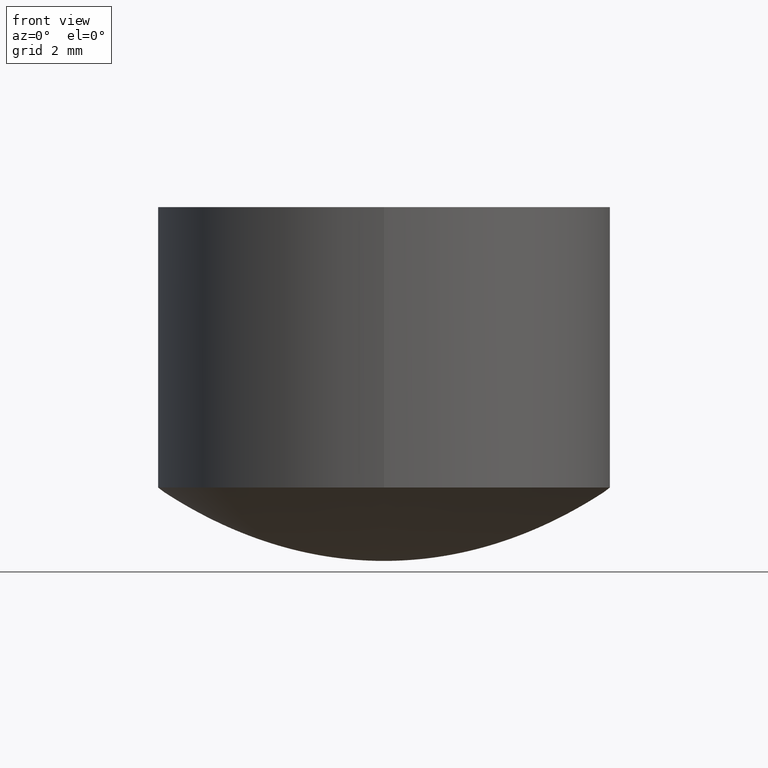
[diagram: clean part render]
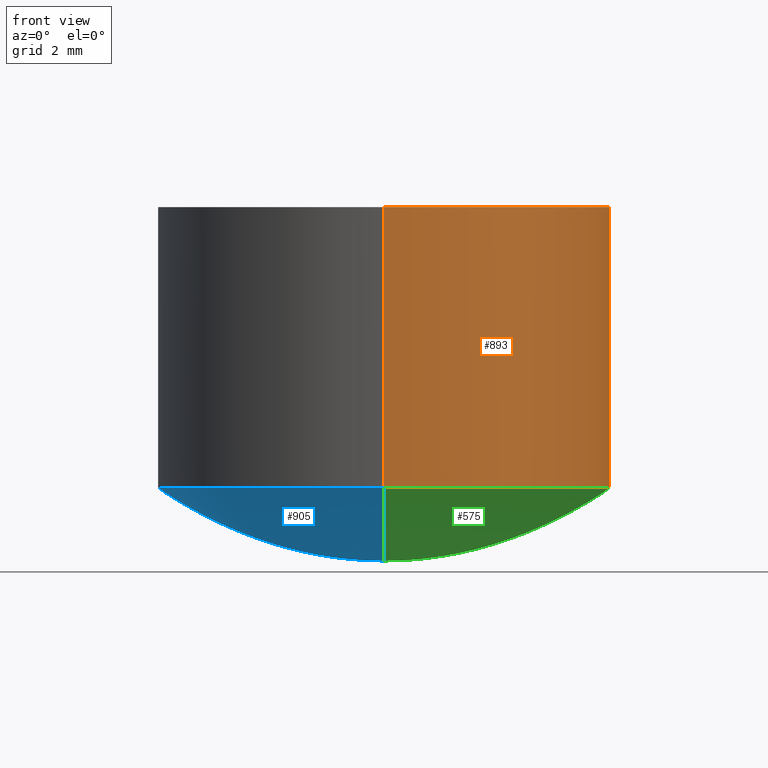
[diagram: same view with three faces highlighted in distinct colors, each labeled with its STEP entity id]
A machine part, front view with three faces highlighted in distinct colors.
Their STEP definitions:

[orange] entity #893 — the highlighted cylindrical surface (partial cylindrical patch) has radius 5 mm, axis along (0, 0, -1).
#25 = DIRECTION ( 'NONE',  ( 0.000000000000000000, 0.000000000000000000, -1.000000000000000000 ) ) ;
#69 = CIRCLE ( 'NONE', #97, 5.000000000000000000 ) ;
#71 = ORIENTED_EDGE ( 'NONE', *, *, #705, .T. ) ;
#95 = LINE ( 'NONE', #511, #692 ) ;
#97 = AXIS2_PLACEMENT_3D ( 'NONE', #469, #393, #723 ) ;
#103 = CARTESIAN_POINT ( 'NONE',  ( 0.000000000000000000, 0.000000000000000000, 8.189999999999999503 ) ) ;
#110 = ORIENTED_EDGE ( 'NONE', *, *, #995, .T. ) ;
#138 = EDGE_CURVE ( 'NONE', #477, #572, #95, .T. ) ;
#156 = EDGE_LOOP ( 'NONE', ( #110, #771, #71, #1076 ) ) ;
#164 = VECTOR ( 'NONE', #409, 1000.000000000000000 ) ;
#183 = EDGE_CURVE ( 'NONE', #395, #308, #415, .T. ) ;
#253 = DIRECTION ( 'NONE',  ( 0.000000000000000000, 0.000000000000000000, -1.000000000000000000 ) ) ;
#308 = VERTEX_POINT ( 'NONE', #740 ) ;
#361 = AXIS2_PLACEMENT_3D ( 'NONE', #629, #871, #789 ) ;
#393 = DIRECTION ( 'NONE',  ( 0.000000000000000000, 0.000000000000000000, -1.000000000000000000 ) ) ;
#395 = VERTEX_POINT ( 'NONE', #703 ) ;
#409 = DIRECTION ( 'NONE',  ( 0.000000000000000000, 0.000000000000000000, -1.000000000000000000 ) ) ;
#415 = LINE ( 'NONE', #1001, #164 ) ;
#437 = CYLINDRICAL_SURFACE ( 'NONE', #625, 5.000000000000000000 ) ;
#469 = CARTESIAN_POINT ( 'NONE',  ( 0.000000000000000000, 0.000000000000000000, 7.799999999999999822 ) ) ;
#477 = VERTEX_POINT ( 'NONE', #787 ) ;
#511 = CARTESIAN_POINT ( 'NONE',  ( 0.000000000000000000, 5.000000000000000000, 8.189999999999999503 ) ) ;
#572 = VERTEX_POINT ( 'NONE', #862 ) ;
#625 = AXIS2_PLACEMENT_3D ( 'NONE', #103, #25, #665 ) ;
#629 = CARTESIAN_POINT ( 'NONE',  ( 0.000000000000000000, 0.000000000000000000, 1.617560169019170102 ) ) ;
#665 = DIRECTION ( 'NONE',  ( 0.000000000000000000, 1.000000000000000000, 0.000000000000000000 ) ) ;
#692 = VECTOR ( 'NONE', #253, 1000.000000000000000 ) ;
#703 = CARTESIAN_POINT ( 'NONE',  ( 6.123233995736766282E-16, -5.000000000000000000, 7.799999999999999822 ) ) ;
#705 = EDGE_CURVE ( 'NONE', #308, #572, #897, .T. ) ;
#723 = DIRECTION ( 'NONE',  ( 0.000000000000000000, 1.000000000000000000, 0.000000000000000000 ) ) ;
#740 = CARTESIAN_POINT ( 'NONE',  ( 6.123233995736766282E-16, -5.000000000000000000, 1.617560169019170102 ) ) ;
#754 = FACE_OUTER_BOUND ( 'NONE', #156, .T. ) ;
#771 = ORIENTED_EDGE ( 'NONE', *, *, #183, .T. ) ;
#787 = CARTESIAN_POINT ( 'NONE',  ( 0.000000000000000000, 5.000000000000000000, 7.799999999999999822 ) ) ;
#789 = DIRECTION ( 'NONE',  ( 0.000000000000000000, 1.000000000000000000, 0.000000000000000000 ) ) ;
#862 = CARTESIAN_POINT ( 'NONE',  ( 0.000000000000000000, 5.000000000000000000, 1.617560169019170102 ) ) ;
#871 = DIRECTION ( 'NONE',  ( 0.000000000000000000, 0.000000000000000000, 1.000000000000000000 ) ) ;
#893 = ADVANCED_FACE ( 'NONE', ( #754 ), #437, .T. ) ;
#897 = CIRCLE ( 'NONE', #361, 5.000000000000000000 ) ;
#995 = EDGE_CURVE ( 'NONE', #477, #395, #69, .T. ) ;
#1001 = CARTESIAN_POINT ( 'NONE',  ( 6.123233995736766282E-16, -5.000000000000000000, 8.189999999999999503 ) ) ;
#1076 = ORIENTED_EDGE ( 'NONE', *, *, #138, .F. ) ;

[blue] entity #905 — the highlighted face is a freeform B-spline surface patch.
#1 = CARTESIAN_POINT ( 'NONE',  ( 0.000000000000000000, 5.000000000000000000, 1.617560169019170102 ) ) ;
#2 = CARTESIAN_POINT ( 'NONE',  ( 0.000000000000000000, 0.000000000000000000, 0.000000000000000000 ) ) ;
#3 = CARTESIAN_POINT ( 'NONE',  ( -5.230262371358484230E-16, -4.270833333333330373, 1.167217595468119873 ) ) ;
#4 = CARTESIAN_POINT ( 'NONE',  ( -4.895833333333338366, 2.447916666666669627, 0.3756607499278489803 ) ) ;
#6 = CARTESIAN_POINT ( 'NONE',  ( -2.551347498223648427E-16, -2.083333333333330373, 0.2712992865518660257 ) ) ;
#7 = CARTESIAN_POINT ( 'NONE',  ( 0.000000000000000000, 0.000000000000000000, 0.000000000000000000 ) ) ;
#8 = CARTESIAN_POINT ( 'NONE',  ( 0.000000000000000000, 4.427083333333329485, 1.256971558564329960 ) ) ;
#9 = CARTESIAN_POINT ( 'NONE',  ( -2.232429060945700200E-16, -1.822916666666670071, 0.2073209675515889916 ) ) ;
#11 = CARTESIAN_POINT ( 'NONE',  ( 0.000000000000000000, 3.697916666666669627, 0.8684960787638259516 ) ) ;
#13 = CARTESIAN_POINT ( 'NONE',  ( 0.000000000000000000, 5.000000000000000000, 1.617560169019170102 ) ) ;
#14 = B_SPLINE_CURVE_WITH_KNOTS ( 'NONE', 3,
 ( #319, #808, #730, #578, #987, #651, #237, #142, #222, #641, #896, #887, #973, #150, #486, #655, #901, #813, #489, #817, #61, #78, #714, #1057, #303, #635, #563, #966, #556, #881, #136, #472, #389, #719, #1063, #228, #674, #752, #6, #86, #18, #505, #585, #160, #759, #831, #426, #335, #904, #244, #349, #821, #1020, #91, #330, #494, #659, #838, #501, #420, #431, #82, #929, #680, #668, #747 ),
 .UNSPECIFIED., .F., .F.,
 ( 4, 2, 2, 2, 2, 2, 2, 2, 2, 2, 2, 2, 2, 2, 2, 2, 2, 2, 2, 2, 2, 2, 2, 2, 2, 2, 2, 2, 2, 2, 2, 2, 4 ),
 ( -1.000000000000000000, -0.9687500000000000000, -0.9375000000000000000, -0.9062500000000000000, -0.8750000000000000000, -0.8437500000000000000, -0.8125000000000000000, -0.7812500000000000000, -0.7500000000000000000, -0.7187500000000000000, -0.6875000000000000000, -0.6562500000000000000, -0.6250000000000000000, -0.5937500000000000000, -0.5625000000000000000, -0.5312500000000000000, -0.5000000000000000000, -0.4687500000000000000, -0.4375000000000000000, -0.4062500000000000000, -0.3750000000000000000, -0.3437500000000000000, -0.3125000000000000000, -0.2812500000000000000, -0.2500000000000000000, -0.2187500000000000000, -0.1875000000000000000, -0.1562500000000000000, -0.1250000000000000000, -0.09375000000000000000, -0.06250000000000000000, -0.03125000000000000000, 0.000000000000000000 ),
 .UNSPECIFIED. ) ;
#15 = CARTESIAN_POINT ( 'NONE',  ( 0.000000000000000000, 2.395833333333329929, 0.3596872354174800446 ) ) ;
#18 = CARTESIAN_POINT ( 'NONE',  ( -2.359996435856874265E-16, -1.927083333333329929, 0.2318632982629649786 ) ) ;
#19 = CARTESIAN_POINT ( 'NONE',  ( -9.270833333333337478, -4.635416666666668739, 1.382283153897870154 ) ) ;
#20 = CARTESIAN_POINT ( 'NONE',  ( -3.229166666666658081, 1.614583333333329707, 0.1624107513081980148 ) ) ;
#24 = CARTESIAN_POINT ( 'NONE',  ( -0.7291666666666659635, 0.3645833333333330373, 0.008087111238082270170 ) ) ;
#26 = CARTESIAN_POINT ( 'NONE',  ( -3.020833333333339699, -1.510416666666669849, 0.1420318592198300256 ) ) ;
#31 = CARTESIAN_POINT ( 'NONE',  ( 0.000000000000000000, 3.229166666666669627, 0.6586788206636909893 ) ) ;
#33 = CARTESIAN_POINT ( 'NONE',  ( 0.000000000000000000, 1.197916666666670071, 0.08915111253686988646 ) ) ;
#38 = CARTESIAN_POINT ( 'NONE',  ( 0.000000000000000000, 1.041666666666670071, 0.06733053021748529321 ) ) ;
#39 = CARTESIAN_POINT ( 'NONE',  ( -7.604166666666659857, 3.802083333333329929, 0.9193081691599520600 ) ) ;
#40 = CARTESIAN_POINT ( 'NONE',  ( -2.083333333333339699, 1.041666666666670071, 0.06733053021748529321 ) ) ;
#42 = CARTESIAN_POINT ( 'NONE',  ( 0.000000000000000000, 2.864583333333329929, 0.5163942710003869285 ) ) ;
#43 = EDGE_CURVE ( 'NONE', #572, #308, #1046, .T. ) ;
#44 = CARTESIAN_POINT ( 'NONE',  ( -6.666666666666658081, -3.333333333333329040, 0.7026681368908810343 ) ) ;
#48 = CARTESIAN_POINT ( 'NONE',  ( -7.291666666666659857, 3.645833333333330817, 0.8436670115498620115 ) ) ;
#49 = CARTESIAN_POINT ( 'NONE',  ( 0.000000000000000000, 1.041666666666670071, 0.06733053021748529321 ) ) ;
#56 = CARTESIAN_POINT ( 'NONE',  ( 0.000000000000000000, 3.645833333333330373, 0.8436670115498621225 ) ) ;
#61 = CARTESIAN_POINT ( 'NONE',  ( -4.273507059524613913E-16, -3.489583333333330373, 0.7714648451920029792 ) ) ;
#62 = CARTESIAN_POINT ( 'NONE',  ( -5.520833333333339255, 2.760416666666669627, 0.4790406091559870072 ) ) ;
#75 = CARTESIAN_POINT ( 'NONE',  ( 0.000000000000000000, 0.5729166666666669627, 0.02022419944946250020 ) ) ;
#78 = CARTESIAN_POINT ( 'NONE',  ( -4.145939684613439356E-16, -3.385416666666669627, 0.7252232164135439252 ) ) ;
#82 = CARTESIAN_POINT ( 'NONE',  ( -3.189184372779570394E-17, -0.2604166666666670182, 0.004043061793561849616 ) ) ;
#84 = CARTESIAN_POINT ( 'NONE',  ( 0.000000000000000000, 1.979166666666669849, 0.2446577086985490257 ) ) ;
#86 = CARTESIAN_POINT ( 'NONE',  ( -2.423780123312473869E-16, -1.979166666666669849, 0.2446577086985490257 ) ) ;
#87 = CARTESIAN_POINT ( 'NONE',  ( -5.995666620825578906E-16, -4.895833333333330373, 1.548119533617229981 ) ) ;
#88 = CARTESIAN_POINT ( 'NONE',  ( -1.658375873845378207E-16, -1.354166666666670071, 0.1140474891742289942 ) ) ;
#91 = CARTESIAN_POINT ( 'NONE',  ( -1.084322686745052763E-16, -0.8854166666666670737, 0.04857505491018750121 ) ) ;
#92 = CARTESIAN_POINT ( 'NONE',  ( 0.000000000000000000, 4.739583333333330373, 1.447383636280550112 ) ) ;
#93 = CARTESIAN_POINT ( 'NONE',  ( 0.000000000000000000, 2.291666666666669627, 0.3288070211532519993 ) ) ;
#96 = CARTESIAN_POINT ( 'NONE',  ( 0.000000000000000000, 0.2604166666666670182, 0.004043061793561849616 ) ) ;
#98 = CARTESIAN_POINT ( 'NONE',  ( -9.895833333333339255, -4.947916666666669627, 1.582526107224500045 ) ) ;
#100 = CARTESIAN_POINT ( 'NONE',  ( -3.541666666666659857, -1.770833333333329485, 0.1955730472710010270 ) ) ;
#102 = CARTESIAN_POINT ( 'NONE',  ( 0.000000000000000000, 2.916666666666669627, 0.5356169330633570036 ) ) ;
#104 = EDGE_CURVE ( 'NONE', #308, #991, #14, .T. ) ;
#105 = CARTESIAN_POINT ( 'NONE',  ( -3.229166666666658081, -1.614583333333329040, 0.1624107513081980148 ) ) ;
#109 = CARTESIAN_POINT ( 'NONE',  ( 0.000000000000000000, 0.2604166666666670182, 0.004043061793561849616 ) ) ;
#111 = CARTESIAN_POINT ( 'NONE',  ( 0.000000000000000000, 4.583333333333329485, 1.350347332369220110 ) ) ;
#112 = CARTESIAN_POINT ( 'NONE',  ( 0.000000000000000000, 0.8854166666666670737, 0.04857505491018750121 ) ) ;
#115 = CARTESIAN_POINT ( 'NONE',  ( 0.000000000000000000, 2.604166666666670071, 0.4257304941967949841 ) ) ;
#117 = CARTESIAN_POINT ( 'NONE',  ( -7.708333333333340143, -3.854166666666669183, 0.9452911934040880704 ) ) ;
#122 = CARTESIAN_POINT ( 'NONE',  ( 0.000000000000000000, 3.385416666666669627, 0.7252232164135439252 ) ) ;
#126 = CARTESIAN_POINT ( 'NONE',  ( 0.000000000000000000, 3.072916666666670071, 0.5954867625624410410 ) ) ;
#130 = CARTESIAN_POINT ( 'NONE',  ( -6.041666666666658081, -3.020833333333329040, 0.5751631786288120551 ) ) ;
#131 = CARTESIAN_POINT ( 'NONE',  ( -1.084322686745052763E-16, -0.8854166666666670737, 0.04857505491018750121 ) ) ;
#136 = CARTESIAN_POINT ( 'NONE',  ( -3.316751747690744089E-16, -2.708333333333329929, 0.4609096090331890050 ) ) ;
#137 = CARTESIAN_POINT ( 'NONE',  ( 0.000000000000000000, 2.552083333333330373, 0.4086823792219970164 ) ) ;
#142 = CARTESIAN_POINT ( 'NONE',  ( -5.485397121180857011E-16, -4.479166666666669627, 1.287691535718960001 ) ) ;
#145 = EDGE_LOOP ( 'NONE', ( #324, #406, #955 ) ) ;
#150 = CARTESIAN_POINT ( 'NONE',  ( -4.911343934080535018E-16, -4.010416666666669627, 1.025571785885619924 ) ) ;
#160 = CARTESIAN_POINT ( 'NONE',  ( -2.041077998578926038E-16, -1.666666666666670071, 0.1731179391383699806 ) ) ;
#161 = CARTESIAN_POINT ( 'NONE',  ( -3.189184372779570394E-17, -0.2604166666666670182, 0.004043061793561849616 ) ) ;
#165 = CARTESIAN_POINT ( 'NONE',  ( 0.000000000000000000, 4.166666666666670515, 1.109373925199800048 ) ) ;
#168 = CARTESIAN_POINT ( 'NONE',  ( 0.000000000000000000, 4.895833333333330373, 1.548119533617229981 ) ) ;
#170 = CARTESIAN_POINT ( 'NONE',  ( -2.708333333333339699, 1.354166666666670071, 0.1140474891742289942 ) ) ;
#173 = CARTESIAN_POINT ( 'NONE',  ( 0.000000000000000000, 4.791666666666669627, 1.480548299406919899 ) ) ;
#174 = CARTESIAN_POINT ( 'NONE',  ( -1.275673749111830315E-17, -0.1041666666666670044, 0.0005053210087781690374 ) ) ;
#175 = CARTESIAN_POINT ( 'NONE',  ( -5.294046058814083342E-16, -4.322916666666670515, 1.196734589342119959 ) ) ;
#176 = CARTESIAN_POINT ( 'NONE',  ( -3.854166666666659413, 1.927083333333329929, 0.2318632982629649786 ) ) ;
#179 = CARTESIAN_POINT ( 'NONE',  ( 0.000000000000000000, 4.635416666666669627, 1.382283153897870154 ) ) ;
#180 = CARTESIAN_POINT ( 'NONE',  ( -9.270833333333337478, 4.635416666666669627, 1.382283153897870154 ) ) ;
#181 = CARTESIAN_POINT ( 'NONE',  ( -2.423780123312473869E-16, -1.979166666666669849, 0.2446577086985490257 ) ) ;
#184 = CARTESIAN_POINT ( 'NONE',  ( 0.000000000000000000, 4.114583333333330373, 1.081047247204949935 ) ) ;
#185 = CARTESIAN_POINT ( 'NONE',  ( 0.000000000000000000, 0.3645833333333330373, 0.008087111238082270170 ) ) ;
#186 = CARTESIAN_POINT ( 'NONE',  ( -8.645833333333337478, 4.322916666666670515, 1.196734589342119737 ) ) ;
#188 = CARTESIAN_POINT ( 'NONE',  ( 0.000000000000000000, 1.927083333333329929, 0.2318632982629649786 ) ) ;
#191 = CARTESIAN_POINT ( 'NONE',  ( 0.000000000000000000, 2.239583333333329929, 0.3139003212682990318 ) ) ;
#192 = CARTESIAN_POINT ( 'NONE',  ( 0.000000000000000000, 4.166666666666670515, 1.109373925199800048 ) ) ;
#193 = CARTESIAN_POINT ( 'NONE',  ( 0.000000000000000000, 2.239583333333329929, 0.3139003212682990318 ) ) ;
#196 = CARTESIAN_POINT ( 'NONE',  ( 0.000000000000000000, 1.666666666666670071, 0.1731179391383699806 ) ) ;
#197 = CARTESIAN_POINT ( 'NONE',  ( -3.508102810057518251E-16, -2.864583333333329929, 0.5163942710003869285 ) ) ;
#200 = CARTESIAN_POINT ( 'NONE',  ( 0.000000000000000000, 0.5208333333333330373, 0.01668349489966700072 ) ) ;
#202 = CARTESIAN_POINT ( 'NONE',  ( -7.916666666666658081, 3.958333333333330373, 0.9984230011524830584 ) ) ;
#203 = CARTESIAN_POINT ( 'NONE',  ( -2.395833333333339699, 1.197916666666669849, 0.08915111253686988646 ) ) ;
#208 = CARTESIAN_POINT ( 'NONE',  ( 0.000000000000000000, 0.8333333333333329263, 0.04300293033809969578 ) ) ;
#211 = CARTESIAN_POINT ( 'NONE',  ( -6.770833333333337478, -3.385416666666668739, 0.7252232164135440362 ) ) ;
#215 = CARTESIAN_POINT ( 'NONE',  ( 0.000000000000000000, 2.395833333333329929, 0.3596872354174800446 ) ) ;
#217 = CARTESIAN_POINT ( 'NONE',  ( -7.395833333333337478, 3.697916666666670071, 0.8684960787638259516 ) ) ;
#222 = CARTESIAN_POINT ( 'NONE',  ( -5.421613433725257899E-16, -4.427083333333329485, 1.256971558564329960 ) ) ;
#223 = CARTESIAN_POINT ( 'NONE',  ( -4.464858121891388568E-16, -3.645833333333330373, 0.8436670115498621225 ) ) ;
#228 = CARTESIAN_POINT ( 'NONE',  ( -2.806482248046021207E-16, -2.291666666666669627, 0.3288070211532519993 ) ) ;
#229 = CARTESIAN_POINT ( 'NONE',  ( -5.208333333333339255, 2.604166666666670071, 0.4257304941967950396 ) ) ;
#230 = CARTESIAN_POINT ( 'NONE',  ( 0.000000000000000000, 0.6770833333333329263, 0.02832020460272860127 ) ) ;
#237 = CARTESIAN_POINT ( 'NONE',  ( -5.612964496092031568E-16, -4.583333333333329485, 1.350347332369220110 ) ) ;
#242 = CARTESIAN_POINT ( 'NONE',  ( 0.000000000000000000, 0.5208333333333330373, 0.01668349489966700072 ) ) ;
#244 = CARTESIAN_POINT ( 'NONE',  ( -1.467024811478604292E-16, -1.197916666666670071, 0.08915111253686988646 ) ) ;
#245 = CARTESIAN_POINT ( 'NONE',  ( 0.000000000000000000, 0.2083333333333330095, 0.002526851912835879899 ) ) ;
#248 = CARTESIAN_POINT ( 'NONE',  ( 0.000000000000000000, 4.583333333333329485, 1.350347332369220110 ) ) ;
#250 = CARTESIAN_POINT ( 'NONE',  ( -5.676748183547630680E-16, -4.635416666666669627, 1.382283153897870154 ) ) ;
#251 = CARTESIAN_POINT ( 'NONE',  ( -2.916666666666658969, -1.458333333333329485, 0.1323601550036279939 ) ) ;
#255 = CARTESIAN_POINT ( 'NONE',  ( -0.4166666666666659080, 0.2083333333333330373, 0.002526851912835879899 ) ) ;
#256 = CARTESIAN_POINT ( 'NONE',  ( -8.229166666666658969, 4.114583333333329485, 1.081047247204949935 ) ) ;
#257 = CARTESIAN_POINT ( 'NONE',  ( -4.791666666666658969, 2.395833333333330373, 0.3596872354174800446 ) ) ;
#261 = CARTESIAN_POINT ( 'NONE',  ( 0.000000000000000000, 3.072916666666670071, 0.5954867625624410410 ) ) ;
#262 = CARTESIAN_POINT ( 'NONE',  ( -0.2083333333333338977, -0.1041666666666669488, 0.0005053210087781689289 ) ) ;
#263 = CARTESIAN_POINT ( 'NONE',  ( -8.958333333333337478, -4.479166666666668739, 1.287691535718960001 ) ) ;
#264 = CARTESIAN_POINT ( 'NONE',  ( -3.645833333333339255, 1.822916666666670071, 0.2073209675515889916 ) ) ;
#266 = CARTESIAN_POINT ( 'NONE',  ( 0.000000000000000000, 4.739583333333330373, 1.447383636280550112 ) ) ;
#267 = CARTESIAN_POINT ( 'NONE',  ( 0.000000000000000000, 0.05208333333333330095, 0.000000000000000000 ) ) ;
#268 = CARTESIAN_POINT ( 'NONE',  ( -8.958333333333337478, 4.479166666666669627, 1.287691535718960001 ) ) ;
#269 = CARTESIAN_POINT ( 'NONE',  ( -5.104166666666659857, -2.552083333333329929, 0.4086823792219969609 ) ) ;
#272 = CARTESIAN_POINT ( 'NONE',  ( 0.000000000000000000, 2.083333333333330373, 0.2712992865518660257 ) ) ;
#274 = FACE_OUTER_BOUND ( 'NONE', #145, .T. ) ;
#275 = CARTESIAN_POINT ( 'NONE',  ( -4.479166666666658969, 2.239583333333329929, 0.3139003212682989763 ) ) ;
#278 = CARTESIAN_POINT ( 'NONE',  ( 0.000000000000000000, 0.1041666666666670044, 0.0005053210087781690374 ) ) ;
#279 = CARTESIAN_POINT ( 'NONE',  ( -5.729166666666658969, 2.864583333333329929, 0.5163942710003869285 ) ) ;
#280 = CARTESIAN_POINT ( 'NONE',  ( -2.604166666666659857, 1.302083333333329929, 0.1054065276168939941 ) ) ;
#283 = CARTESIAN_POINT ( 'NONE',  ( 0.000000000000000000, 1.510416666666670071, 0.1420318592198299978 ) ) ;
#284 = CARTESIAN_POINT ( 'NONE',  ( -4.337290746980213025E-16, -3.541666666666670071, 0.7951513952190809587 ) ) ;
#290 = CARTESIAN_POINT ( 'NONE',  ( -6.770833333333337478, 3.385416666666670071, 0.7252232164135440362 ) ) ;
#291 = CARTESIAN_POINT ( 'NONE',  ( -1.594592186389778603E-16, -1.302083333333329929, 0.1054065276168939941 ) ) ;
#297 = CARTESIAN_POINT ( 'NONE',  ( 0.000000000000000000, 3.020833333333330373, 0.5751631786288120551 ) ) ;
#298 = CARTESIAN_POINT ( 'NONE',  ( -2.083333333333339699, -1.041666666666669849, 0.06733053021748529321 ) ) ;
#303 = CARTESIAN_POINT ( 'NONE',  ( -3.890804934791066082E-16, -3.177083333333329929, 0.6372445833134620097 ) ) ;
#304 = CARTESIAN_POINT ( 'NONE',  ( -5.833333333333339255, 2.916666666666669627, 0.5356169330633570036 ) ) ;
#308 = VERTEX_POINT ( 'NONE', #740 ) ;
#309 = CARTESIAN_POINT ( 'NONE',  ( -3.380535435146343200E-16, -2.760416666666669627, 0.4790406091559869517 ) ) ;
#319 = CARTESIAN_POINT ( 'NONE',  ( 6.123233995736766282E-16, -5.000000000000000000, 1.617560169019170102 ) ) ;
#324 = ORIENTED_EDGE ( 'NONE', *, *, #104, .F. ) ;
#326 = CARTESIAN_POINT ( 'NONE',  ( 0.000000000000000000, 3.385416666666669627, 0.7252232164135439252 ) ) ;
#328 = EDGE_CURVE ( 'NONE', #572, #991, #405, .T. ) ;
#330 = CARTESIAN_POINT ( 'NONE',  ( -1.020538999289460554E-16, -0.8333333333333329263, 0.04300293033809969578 ) ) ;
#331 = CARTESIAN_POINT ( 'NONE',  ( -5.102694996447308687E-16, -4.166666666666670515, 1.109373925199800048 ) ) ;
#332 = CARTESIAN_POINT ( 'NONE',  ( -3.958333333333338810, 1.979166666666669849, 0.2446577086985490534 ) ) ;
#335 = CARTESIAN_POINT ( 'NONE',  ( -1.658375873845378207E-16, -1.354166666666670071, 0.1140474891742289942 ) ) ;
#336 = CARTESIAN_POINT ( 'NONE',  ( -8.541666666666658969, 4.270833333333330373, 1.167217595468119873 ) ) ;
#337 = CARTESIAN_POINT ( 'NONE',  ( -4.583333333333339255, 2.291666666666670071, 0.3288070211532519993 ) ) ;
#340 = CARTESIAN_POINT ( 'NONE',  ( 0.000000000000000000, 3.489583333333330373, 0.7714648451920029792 ) ) ;
#342 = CARTESIAN_POINT ( 'NONE',  ( -0.5208333333333339255, 0.2604166666666670182, 0.004043061793561849616 ) ) ;
#343 = CARTESIAN_POINT ( 'NONE',  ( -9.999999999999998224, -4.999999999999999112, 1.617560169019170324 ) ) ;
#345 = CARTESIAN_POINT ( 'NONE',  ( -4.479166666666658969, -2.239583333333329485, 0.3139003212682989763 ) ) ;
#349 = CARTESIAN_POINT ( 'NONE',  ( -1.403241124023004687E-16, -1.145833333333329929, 0.08153665907800439205 ) ) ;
#350 = CARTESIAN_POINT ( 'NONE',  ( 0.000000000000000000, 4.270833333333330373, 1.167217595468119873 ) ) ;
#351 = CARTESIAN_POINT ( 'NONE',  ( -4.166666666666659857, -2.083333333333329929, 0.2712992865518660257 ) ) ;
#353 = CARTESIAN_POINT ( 'NONE',  ( 0.000000000000000000, 0.000000000000000000, 0.000000000000000000 ) ) ;
#354 = CARTESIAN_POINT ( 'NONE',  ( -0.7291666666666659635, -0.3645833333333328707, 0.008087111238082270170 ) ) ;
#355 = CARTESIAN_POINT ( 'NONE',  ( -9.999999999999998224, 5.000000000000000000, 1.617560169019170324 ) ) ;
#356 = CARTESIAN_POINT ( 'NONE',  ( -3.333333333333339255, 1.666666666666669849, 0.1731179391383699806 ) ) ;
#360 = CARTESIAN_POINT ( 'NONE',  ( 0.000000000000000000, 1.458333333333329929, 0.1323601550036279939 ) ) ;
#362 = CARTESIAN_POINT ( 'NONE',  ( 0.000000000000000000, 2.864583333333329929, 0.5163942710003869285 ) ) ;
#365 = CARTESIAN_POINT ( 'NONE',  ( 0.000000000000000000, 2.760416666666669627, 0.4790406091559869517 ) ) ;
#366 = CARTESIAN_POINT ( 'NONE',  ( -7.395833333333339255, -3.697916666666668739, 0.8684960787638259516 ) ) ;
#370 = CARTESIAN_POINT ( 'NONE',  ( -4.082155997157840244E-16, -3.333333333333329929, 0.7026681368908810343 ) ) ;
#371 = CARTESIAN_POINT ( 'NONE',  ( -2.291666666666659413, -1.145833333333329707, 0.08153665907800440593 ) ) ;
#374 = CARTESIAN_POINT ( 'NONE',  ( 0.000000000000000000, 0.7291666666666670737, 0.03287550515428189907 ) ) ;
#376 = CARTESIAN_POINT ( 'NONE',  ( -6.145833333333338366, -3.072916666666669183, 0.5954867625624411520 ) ) ;
#378 = CARTESIAN_POINT ( 'NONE',  ( 0.000000000000000000, 0.9895833333333330373, 0.06073885488252669940 ) ) ;
#384 = CARTESIAN_POINT ( 'NONE',  ( -8.020833333333337478, 4.010416666666669627, 1.025571785885619924 ) ) ;
#389 = CARTESIAN_POINT ( 'NONE',  ( -3.125400685323970420E-16, -2.552083333333330373, 0.4086823792219970164 ) ) ;
#390 = CARTESIAN_POINT ( 'NONE',  ( -5.520833333333339255, -2.760416666666668739, 0.4790406091559870072 ) ) ;
#396 = CARTESIAN_POINT ( 'NONE',  ( -1.020538999289460554E-16, -0.8333333333333329263, 0.04300293033809969578 ) ) ;
#405 = B_SPLINE_CURVE_WITH_KNOTS ( 'NONE', 3,
 ( #1, #827, #663, #173, #266, #179, #248, #910, #1006, #596, #591, #165, #184, #602, #516, #845, #917, #11, #735, #1084, #340, #326, #997, #580, #1014, #261, #923, #102, #42, #365, #941, #115, #528, #522, #215, #448, #191, #630, #272, #624, #1031, #436, #947, #196, #775, #283, #360, #765, #936, #693, #770, #38, #855, #459, #208, #374, #850, #686, #200, #698, #1036, #109, #708, #278, #609, #353 ),
 .UNSPECIFIED., .F., .F.,
 ( 4, 2, 2, 2, 2, 2, 2, 2, 2, 2, 2, 2, 2, 2, 2, 2, 2, 2, 2, 2, 2, 2, 2, 2, 2, 2, 2, 2, 2, 2, 2, 2, 4 ),
 ( -1.000000000000000000, -0.9687500000000000000, -0.9375000000000000000, -0.9062500000000000000, -0.8750000000000000000, -0.8437500000000000000, -0.8125000000000000000, -0.7812500000000000000, -0.7500000000000000000, -0.7187500000000000000, -0.6875000000000000000, -0.6562500000000000000, -0.6250000000000000000, -0.5937500000000000000, -0.5625000000000000000, -0.5312500000000000000, -0.5000000000000000000, -0.4687500000000000000, -0.4375000000000000000, -0.4062500000000000000, -0.3750000000000000000, -0.3437500000000000000, -0.3125000000000000000, -0.2812500000000000000, -0.2500000000000000000, -0.2187500000000000000, -0.1875000000000000000, -0.1562500000000000000, -0.1250000000000000000, -0.09375000000000000000, -0.06250000000000000000, -0.03125000000000000000, 0.000000000000000000 ),
 .UNSPECIFIED. ) ;
#406 = ORIENTED_EDGE ( 'NONE', *, *, #43, .F. ) ;
#418 = CARTESIAN_POINT ( 'NONE',  ( 0.000000000000000000, 1.458333333333329929, 0.1323601550036279939 ) ) ;
#420 = CARTESIAN_POINT ( 'NONE',  ( -5.102694996447308933E-17, -0.4166666666666670182, 0.01061495077339770152 ) ) ;
#421 = CARTESIAN_POINT ( 'NONE',  ( 0.000000000000000000, 4.791666666666669627, 1.480548299406919899 ) ) ;
#422 = CARTESIAN_POINT ( 'NONE',  ( 0.000000000000000000, 1.302083333333329929, 0.1054065276168939941 ) ) ;
#426 = CARTESIAN_POINT ( 'NONE',  ( -1.785943248756552765E-16, -1.458333333333329929, 0.1323601550036279939 ) ) ;
#428 = CARTESIAN_POINT ( 'NONE',  ( -3.958333333333338810, -1.979166666666669405, 0.2446577086985490534 ) ) ;
#431 = CARTESIAN_POINT ( 'NONE',  ( -4.464858121891388075E-17, -0.3645833333333330373, 0.008087111238082270170 ) ) ;
#432 = CARTESIAN_POINT ( 'NONE',  ( -5.421613433725257899E-16, -4.427083333333329485, 1.256971558564329960 ) ) ;
#433 = CARTESIAN_POINT ( 'NONE',  ( -2.168645373490100596E-16, -1.770833333333329929, 0.1955730472710010270 ) ) ;
#436 = CARTESIAN_POINT ( 'NONE',  ( 0.000000000000000000, 1.822916666666670071, 0.2073209675515889916 ) ) ;
#438 = CARTESIAN_POINT ( 'NONE',  ( -1.977294311123326434E-16, -1.614583333333329929, 0.1624107513081980148 ) ) ;
#443 = CARTESIAN_POINT ( 'NONE',  ( -7.291666666666659857, -3.645833333333329929, 0.8436670115498620115 ) ) ;
#444 = CARTESIAN_POINT ( 'NONE',  ( -1.666666666666665630, -0.8333333333333328152, 0.04300293033809969578 ) ) ;
#448 = CARTESIAN_POINT ( 'NONE',  ( 0.000000000000000000, 2.291666666666669627, 0.3288070211532519993 ) ) ;
#450 = CARTESIAN_POINT ( 'NONE',  ( -8.020833333333337478, -4.010416666666668739, 1.025571785885619924 ) ) ;
#451 = CARTESIAN_POINT ( 'NONE',  ( -1.979166666666665408, -0.9895833333333327042, 0.06073885488252669940 ) ) ;
#455 = CARTESIAN_POINT ( 'NONE',  ( -6.979166666666658969, -3.489583333333329485, 0.7714648451920029792 ) ) ;
#459 = CARTESIAN_POINT ( 'NONE',  ( 0.000000000000000000, 0.8854166666666670737, 0.04857505491018750121 ) ) ;
#461 = CARTESIAN_POINT ( 'NONE',  ( -6.145833333333338366, 3.072916666666670071, 0.5954867625624411520 ) ) ;
#462 = CARTESIAN_POINT ( 'NONE',  ( -2.291666666666659413, 1.145833333333329707, 0.08153665907800440593 ) ) ;
#466 = CARTESIAN_POINT ( 'NONE',  ( -3.699453872424291920E-16, -3.020833333333330373, 0.5751631786288120551 ) ) ;
#472 = CARTESIAN_POINT ( 'NONE',  ( -3.189184372779570025E-16, -2.604166666666670071, 0.4257304941967949841 ) ) ;
#473 = CARTESIAN_POINT ( 'NONE',  ( -5.416666666666658969, -2.708333333333329485, 0.4609096090331890605 ) ) ;
#481 = DIRECTION ( 'NONE',  ( 0.000000000000000000, 1.000000000000000000, 0.000000000000000000 ) ) ;
#486 = CARTESIAN_POINT ( 'NONE',  ( -4.847560246624935906E-16, -3.958333333333330373, 0.9984230011524830584 ) ) ;
#489 = CARTESIAN_POINT ( 'NONE',  ( -4.464858121891388568E-16, -3.645833333333330373, 0.8436670115498621225 ) ) ;
#494 = CARTESIAN_POINT ( 'NONE',  ( -8.929716243782788476E-17, -0.7291666666666670737, 0.03287550515428189907 ) ) ;
#495 = CARTESIAN_POINT ( 'NONE',  ( 0.000000000000000000, 0.1041666666666670044, 0.0005053210087781690374 ) ) ;
#501 = CARTESIAN_POINT ( 'NONE',  ( -6.378368745559127230E-17, -0.5208333333333330373, 0.01668349489966700072 ) ) ;
#502 = CARTESIAN_POINT ( 'NONE',  ( 0.000000000000000000, 4.947916666666669627, 1.582526107224500045 ) ) ;
#503 = CARTESIAN_POINT ( 'NONE',  ( -2.708333333333339699, -1.354166666666669405, 0.1140474891742289942 ) ) ;
#505 = CARTESIAN_POINT ( 'NONE',  ( -2.232429060945700200E-16, -1.822916666666670071, 0.2073209675515889916 ) ) ;
#506 = CARTESIAN_POINT ( 'NONE',  ( 0.000000000000000000, 4.010416666666669627, 1.025571785885619924 ) ) ;
#507 = CARTESIAN_POINT ( 'NONE',  ( -3.854166666666659413, -1.927083333333329707, 0.2318632982629649786 ) ) ;
#512 = CARTESIAN_POINT ( 'NONE',  ( 0.000000000000000000, 0.4166666666666670182, 0.01061495077339770152 ) ) ;
#513 = CARTESIAN_POINT ( 'NONE',  ( -5.612964496092031568E-16, -4.583333333333329485, 1.350347332369220110 ) ) ;
#514 = CARTESIAN_POINT ( 'NONE',  ( -4.791666666666658969, -2.395833333333329485, 0.3596872354174800446 ) ) ;
#516 = CARTESIAN_POINT ( 'NONE',  ( 0.000000000000000000, 3.958333333333330373, 0.9984230011524830584 ) ) ;
#517 = CARTESIAN_POINT ( 'NONE',  ( -0.1041666666666665741, 0.05208333333333330095, 0.000000000000000000 ) ) ;
#518 = CARTESIAN_POINT ( 'NONE',  ( -8.229166666666658969, -4.114583333333329485, 1.081047247204949935 ) ) ;
#519 = CARTESIAN_POINT ( 'NONE',  ( 0.000000000000000000, 2.135416666666670071, 0.2851464540075329679 ) ) ;
#522 = CARTESIAN_POINT ( 'NONE',  ( 0.000000000000000000, 2.447916666666670071, 0.3756607499278489803 ) ) ;
#523 = CARTESIAN_POINT ( 'NONE',  ( -9.583333333333337478, 4.791666666666669627, 1.480548299406919899 ) ) ;
#525 = CARTESIAN_POINT ( 'NONE',  ( -4.166666666666659857, 2.083333333333330373, 0.2712992865518660257 ) ) ;
#528 = CARTESIAN_POINT ( 'NONE',  ( 0.000000000000000000, 2.552083333333330373, 0.4086823792219970164 ) ) ;
#530 = CARTESIAN_POINT ( 'NONE',  ( 0.000000000000000000, 2.760416666666669627, 0.4790406091559869517 ) ) ;
#531 = CARTESIAN_POINT ( 'NONE',  ( -1.979166666666665408, 0.9895833333333329263, 0.06073885488252669940 ) ) ;
#537 = CARTESIAN_POINT ( 'NONE',  ( -7.604166666666659857, -3.802083333333329929, 0.9193081691599520600 ) ) ;
#544 = CARTESIAN_POINT ( 'NONE',  ( -3.954588622246665194E-16, -3.229166666666669627, 0.6586788206636909893 ) ) ;
#545 = CARTESIAN_POINT ( 'NONE',  ( -1.403241124023004687E-16, -1.145833333333329929, 0.08153665907800439205 ) ) ;
#550 = CARTESIAN_POINT ( 'NONE',  ( 0.000000000000000000, 3.697916666666669627, 0.8684960787638259516 ) ) ;
#551 = CARTESIAN_POINT ( 'NONE',  ( -2.604166666666659857, -1.302083333333329929, 0.1054065276168939941 ) ) ;
#556 = CARTESIAN_POINT ( 'NONE',  ( -3.508102810057518251E-16, -2.864583333333329929, 0.5163942710003869285 ) ) ;
#557 = CARTESIAN_POINT ( 'NONE',  ( -7.083333333333338366, 3.541666666666670515, 0.7951513952190810697 ) ) ;
#559 = CARTESIAN_POINT ( 'NONE',  ( 0.000000000000000000, 0.7291666666666670737, 0.03287550515428189907 ) ) ;
#563 = CARTESIAN_POINT ( 'NONE',  ( -3.699453872424291920E-16, -3.020833333333330373, 0.5751631786288120551 ) ) ;
#564 = CARTESIAN_POINT ( 'NONE',  ( -3.189184372779570025E-16, -2.604166666666670071, 0.4257304941967949841 ) ) ;
#569 = CARTESIAN_POINT ( 'NONE',  ( 0.000000000000000000, 0.000000000000000000, 1.617560169019170102 ) ) ;
#572 = VERTEX_POINT ( 'NONE', #862 ) ;
#578 = CARTESIAN_POINT ( 'NONE',  ( -5.868099245914404349E-16, -4.791666666666669627, 1.480548299406919899 ) ) ;
#580 = CARTESIAN_POINT ( 'NONE',  ( 0.000000000000000000, 3.229166666666669627, 0.6586788206636909893 ) ) ;
#585 = CARTESIAN_POINT ( 'NONE',  ( -2.168645373490100596E-16, -1.770833333333329929, 0.1955730472710010270 ) ) ;
#586 = CARTESIAN_POINT ( 'NONE',  ( -6.378368745559127230E-17, -0.5208333333333330373, 0.01668349489966700072 ) ) ;
#587 = CARTESIAN_POINT ( 'NONE',  ( -9.791666666666658969, 4.895833333333330373, 1.548119533617229981 ) ) ;
#588 = CARTESIAN_POINT ( 'NONE',  ( -1.785943248756552765E-16, -1.458333333333329929, 0.1323601550036279939 ) ) ;
#591 = CARTESIAN_POINT ( 'NONE',  ( 0.000000000000000000, 4.270833333333330373, 1.167217595468119873 ) ) ;
#592 = CARTESIAN_POINT ( 'NONE',  ( -8.645833333333337478, -4.322916666666668739, 1.196734589342119737 ) ) ;
#594 = CARTESIAN_POINT ( 'NONE',  ( -2.551347498223648427E-16, -2.083333333333330373, 0.2712992865518660257 ) ) ;
#596 = CARTESIAN_POINT ( 'NONE',  ( 0.000000000000000000, 4.322916666666670515, 1.196734589342119959 ) ) ;
#597 = CARTESIAN_POINT ( 'NONE',  ( -0.5208333333333339255, -0.2604166666666669627, 0.004043061793561849616 ) ) ;
#598 = CARTESIAN_POINT ( 'NONE',  ( -9.166666666666658969, -4.583333333333329485, 1.350347332369220110 ) ) ;
#599 = CARTESIAN_POINT ( 'NONE',  ( -3.645833333333340143, -1.822916666666669627, 0.2073209675515889916 ) ) ;
#602 = CARTESIAN_POINT ( 'NONE',  ( 0.000000000000000000, 4.010416666666669627, 1.025571785885619924 ) ) ;
#603 = CARTESIAN_POINT ( 'NONE',  ( 0.000000000000000000, 4.635416666666669627, 1.382283153897870154 ) ) ;
#604 = CARTESIAN_POINT ( 'NONE',  ( -4.583333333333339255, -2.291666666666669627, 0.3288070211532519993 ) ) ;
#609 = CARTESIAN_POINT ( 'NONE',  ( 0.000000000000000000, 0.05208333333333330095, 0.000000000000000000 ) ) ;
#610 = CARTESIAN_POINT ( 'NONE',  ( -9.479166666666658969, -4.739583333333329485, 1.447383636280550112 ) ) ;
#611 = CARTESIAN_POINT ( 'NONE',  ( -4.270833333333339255, -2.135416666666669627, 0.2851464540075329679 ) ) ;
#615 = CARTESIAN_POINT ( 'NONE',  ( -5.729166666666658969, -2.864583333333329485, 0.5163942710003869285 ) ) ;
#620 = CARTESIAN_POINT ( 'NONE',  ( -6.354166666666658081, 3.177083333333330373, 0.6372445833134620097 ) ) ;
#624 = CARTESIAN_POINT ( 'NONE',  ( 0.000000000000000000, 1.979166666666669849, 0.2446577086985490257 ) ) ;
#627 = CARTESIAN_POINT ( 'NONE',  ( -7.083333333333339255, -3.541666666666669183, 0.7951513952190810697 ) ) ;
#630 = CARTESIAN_POINT ( 'NONE',  ( 0.000000000000000000, 2.135416666666670071, 0.2851464540075329679 ) ) ;
#631 = CARTESIAN_POINT ( 'NONE',  ( -6.041666666666658081, 3.020833333333330373, 0.5751631786288120551 ) ) ;
#635 = CARTESIAN_POINT ( 'NONE',  ( -3.763237559879891525E-16, -3.072916666666670071, 0.5954867625624410410 ) ) ;
#636 = CARTESIAN_POINT ( 'NONE',  ( -5.833333333333339255, -2.916666666666669183, 0.5356169330633570036 ) ) ;
#641 = CARTESIAN_POINT ( 'NONE',  ( -5.294046058814083342E-16, -4.322916666666670515, 1.196734589342119959 ) ) ;
#642 = CARTESIAN_POINT ( 'NONE',  ( 0.000000000000000000, 2.604166666666670071, 0.4257304941967949841 ) ) ;
#644 = CARTESIAN_POINT ( 'NONE',  ( -1.041666666666665853, 0.5208333333333330373, 0.01668349489966699725 ) ) ;
#651 = CARTESIAN_POINT ( 'NONE',  ( -5.676748183547630680E-16, -4.635416666666669627, 1.382283153897870154 ) ) ;
#652 = CARTESIAN_POINT ( 'NONE',  ( -7.016205620115048088E-17, -0.5729166666666669627, 0.02022419944946250020 ) ) ;
#655 = CARTESIAN_POINT ( 'NONE',  ( -4.719992871713760363E-16, -3.854166666666669627, 0.9452911934040879594 ) ) ;
#659 = CARTESIAN_POINT ( 'NONE',  ( -8.291879369226865153E-17, -0.6770833333333329263, 0.02832020460272860127 ) ) ;
#663 = CARTESIAN_POINT ( 'NONE',  ( 0.000000000000000000, 4.895833333333330373, 1.548119533617229981 ) ) ;
#664 = CARTESIAN_POINT ( 'NONE',  ( 0.000000000000000000, 0.000000000000000000, 0.000000000000000000 ) ) ;
#666 = CARTESIAN_POINT ( 'NONE',  ( -2.041077998578926038E-16, -1.666666666666670071, 0.1731179391383699806 ) ) ;
#668 = CARTESIAN_POINT ( 'NONE',  ( -6.378368745559127692E-18, -0.05208333333333330095, 0.000000000000000000 ) ) ;
#670 = CARTESIAN_POINT ( 'NONE',  ( 0.000000000000000000, 4.114583333333330373, 1.081047247204949935 ) ) ;
#671 = CARTESIAN_POINT ( 'NONE',  ( -4.895833333333338366, -2.447916666666669183, 0.3756607499278489803 ) ) ;
#674 = CARTESIAN_POINT ( 'NONE',  ( -2.742698560590422096E-16, -2.239583333333329929, 0.3139003212682990318 ) ) ;
#675 = CARTESIAN_POINT ( 'NONE',  ( -0.4166666666666659080, -0.2083333333333329540, 0.002526851912835879899 ) ) ;
#676 = CARTESIAN_POINT ( 'NONE',  ( -9.479166666666658969, 4.739583333333330373, 1.447383636280550112 ) ) ;
#677 = CARTESIAN_POINT ( 'NONE',  ( -2.359996435856874265E-16, -1.927083333333329929, 0.2318632982629649786 ) ) ;
#680 = CARTESIAN_POINT ( 'NONE',  ( -1.275673749111830315E-17, -0.1041666666666670044, 0.0005053210087781690374 ) ) ;
#681 = CARTESIAN_POINT ( 'NONE',  ( -1.041666666666665853, -0.5208333333333329263, 0.01668349489966699725 ) ) ;
#682 = CARTESIAN_POINT ( 'NONE',  ( 0.000000000000000000, 4.322916666666670515, 1.196734589342119959 ) ) ;
#683 = CARTESIAN_POINT ( 'NONE',  ( -2.997833310412795863E-16, -2.447916666666670071, 0.3756607499278489803 ) ) ;
#686 = CARTESIAN_POINT ( 'NONE',  ( 0.000000000000000000, 0.5729166666666669627, 0.02022419944946250020 ) ) ;
#687 = CARTESIAN_POINT ( 'NONE',  ( -5.102694996447308933E-17, -0.4166666666666670182, 0.01061495077339770152 ) ) ;
#688 = CARTESIAN_POINT ( 'NONE',  ( -9.895833333333339255, 4.947916666666669627, 1.582526107224500045 ) ) ;
#689 = CARTESIAN_POINT ( 'NONE',  ( 0.000000000000000000, 1.510416666666670071, 0.1420318592198299978 ) ) ;
#693 = CARTESIAN_POINT ( 'NONE',  ( 0.000000000000000000, 1.197916666666670071, 0.08915111253686988646 ) ) ;
#694 = CARTESIAN_POINT ( 'NONE',  ( -6.458333333333337478, 3.229166666666669627, 0.6586788206636909893 ) ) ;
#698 = CARTESIAN_POINT ( 'NONE',  ( 0.000000000000000000, 0.4166666666666670182, 0.01061495077339770152 ) ) ;
#699 = CARTESIAN_POINT ( 'NONE',  ( -4.528641809346987680E-16, -3.697916666666669627, 0.8684960787638259516 ) ) ;
#700 = CARTESIAN_POINT ( 'NONE',  ( -1.211890061656234470E-16, -0.9895833333333330373, 0.06073885488252669940 ) ) ;
#704 = CARTESIAN_POINT ( 'NONE',  ( -6.979166666666658969, 3.489583333333330373, 0.7714648451920029792 ) ) ;
#708 = CARTESIAN_POINT ( 'NONE',  ( 0.000000000000000000, 0.2083333333333330095, 0.002526851912835879899 ) ) ;
#709 = CARTESIAN_POINT ( 'NONE',  ( -3.763237559879891525E-16, -3.072916666666670071, 0.5954867625624410410 ) ) ;
#710 = CARTESIAN_POINT ( 'NONE',  ( -1.770833333333333925, 0.8854166666666670737, 0.04857505491018750815 ) ) ;
#714 = CARTESIAN_POINT ( 'NONE',  ( -4.082155997157840244E-16, -3.333333333333329929, 0.7026681368908810343 ) ) ;
#715 = CARTESIAN_POINT ( 'NONE',  ( 0.000000000000000000, 3.489583333333330373, 0.7714648451920029792 ) ) ;
#719 = CARTESIAN_POINT ( 'NONE',  ( -2.997833310412795863E-16, -2.447916666666670071, 0.3756607499278489803 ) ) ;
#720 = CARTESIAN_POINT ( 'NONE',  ( -3.316751747690744089E-16, -2.708333333333329929, 0.4609096090331890050 ) ) ;
#727 = CARTESIAN_POINT ( 'NONE',  ( -8.929716243782788476E-17, -0.7291666666666670737, 0.03287550515428189907 ) ) ;
#730 = CARTESIAN_POINT ( 'NONE',  ( -5.995666620825578906E-16, -4.895833333333330373, 1.548119533617229981 ) ) ;
#735 = CARTESIAN_POINT ( 'NONE',  ( 0.000000000000000000, 3.645833333333330373, 0.8436670115498621225 ) ) ;
#740 = CARTESIAN_POINT ( 'NONE',  ( 6.123233995736766282E-16, -5.000000000000000000, 1.617560169019170102 ) ) ;
#741 = CARTESIAN_POINT ( 'NONE',  ( 0.000000000000000000, 0.000000000000000000, 0.000000000000000000 ) ) ;
#742 = CARTESIAN_POINT ( 'NONE',  ( 0.000000000000000000, 4.479166666666669627, 1.287691535718960001 ) ) ;
#743 = CARTESIAN_POINT ( 'NONE',  ( -2.916666666666658969, 1.458333333333329929, 0.1323601550036279939 ) ) ;
#747 = CARTESIAN_POINT ( 'NONE',  ( 0.000000000000000000, 0.000000000000000000, 0.000000000000000000 ) ) ;
#748 = CARTESIAN_POINT ( 'NONE',  ( -6.378368745559127692E-18, -0.05208333333333330095, 0.000000000000000000 ) ) ;
#749 = CARTESIAN_POINT ( 'NONE',  ( -5.804315558458805237E-16, -4.739583333333330373, 1.447383636280550112 ) ) ;
#750 = CARTESIAN_POINT ( 'NONE',  ( -3.125400685323970420E-16, -2.552083333333330373, 0.4086823792219970164 ) ) ;
#752 = CARTESIAN_POINT ( 'NONE',  ( -2.615131185679248031E-16, -2.135416666666670071, 0.2851464540075329679 ) ) ;
#753 = CARTESIAN_POINT ( 'NONE',  ( -4.464858121891388075E-17, -0.3645833333333330373, 0.008087111238082270170 ) ) ;
#755 = CARTESIAN_POINT ( 'NONE',  ( 0.000000000000000000, 2.447916666666670071, 0.3756607499278489803 ) ) ;
#759 = CARTESIAN_POINT ( 'NONE',  ( -1.977294311123326434E-16, -1.614583333333329929, 0.1624107513081980148 ) ) ;
#760 = CARTESIAN_POINT ( 'NONE',  ( -0.2083333333333338977, 0.1041666666666669905, 0.0005053210087781689289 ) ) ;
#761 = CARTESIAN_POINT ( 'NONE',  ( -6.059450308281178018E-16, -4.947916666666669627, 1.582526107224500045 ) ) ;
#763 = CARTESIAN_POINT ( 'NONE',  ( 0.000000000000000000, 1.614583333333329929, 0.1624107513081980148 ) ) ;
#765 = CARTESIAN_POINT ( 'NONE',  ( 0.000000000000000000, 1.354166666666670071, 0.1140474891742289942 ) ) ;
#767 = CARTESIAN_POINT ( 'NONE',  ( -3.020833333333339699, 1.510416666666670293, 0.1420318592198300256 ) ) ;
#770 = CARTESIAN_POINT ( 'NONE',  ( 0.000000000000000000, 1.145833333333329929, 0.08153665907800439205 ) ) ;
#772 = CARTESIAN_POINT ( 'NONE',  ( -4.145939684613439356E-16, -3.385416666666669627, 0.7252232164135439252 ) ) ;
#775 = CARTESIAN_POINT ( 'NONE',  ( 0.000000000000000000, 1.614583333333329929, 0.1624107513081980148 ) ) ;
#777 = CARTESIAN_POINT ( 'NONE',  ( -4.911343934080535018E-16, -4.010416666666669627, 1.025571785885619924 ) ) ;
#782 = CARTESIAN_POINT ( 'NONE',  ( 0.000000000000000000, 0.000000000000000000, 0.000000000000000000 ) ) ;
#783 = CARTESIAN_POINT ( 'NONE',  ( -6.666666666666658081, 3.333333333333329929, 0.7026681368908810343 ) ) ;
#784 = CARTESIAN_POINT ( 'NONE',  ( -1.467024811478604292E-16, -1.197916666666670071, 0.08915111253686988646 ) ) ;
#788 = CARTESIAN_POINT ( 'NONE',  ( 0.000000000000000000, 3.802083333333329929, 0.9193081691599519489 ) ) ;
#792 = CARTESIAN_POINT ( 'NONE',  ( 0.000000000000000000, 2.916666666666669627, 0.5356169330633570036 ) ) ;
#795 = CARTESIAN_POINT ( 'NONE',  ( -1.666666666666665630, 0.8333333333333329263, 0.04300293033809969578 ) ) ;
#799 = CARTESIAN_POINT ( 'NONE',  ( -5.208333333333339255, -2.604166666666669627, 0.4257304941967950396 ) ) ;
#800 = CARTESIAN_POINT ( 'NONE',  ( -1.354166666666665630, 0.6770833333333330373, 0.02832020460272860821 ) ) ;
#808 = CARTESIAN_POINT ( 'NONE',  ( -6.059450308281178018E-16, -4.947916666666669627, 1.582526107224500045 ) ) ;
#809 = AXIS2_PLACEMENT_3D ( 'NONE', #569, #890, #481 ) ;
#813 = CARTESIAN_POINT ( 'NONE',  ( -4.528641809346987680E-16, -3.697916666666669627, 0.8684960787638259516 ) ) ;
#814 = CARTESIAN_POINT ( 'NONE',  ( -1.458333333333333925, 0.7291666666666670737, 0.03287550515428189907 ) ) ;
#817 = CARTESIAN_POINT ( 'NONE',  ( -4.337290746980213025E-16, -3.541666666666670071, 0.7951513952190809587 ) ) ;
#821 = CARTESIAN_POINT ( 'NONE',  ( -1.275673749111830623E-16, -1.041666666666670071, 0.06733053021748529321 ) ) ;
#827 = CARTESIAN_POINT ( 'NONE',  ( 0.000000000000000000, 4.947916666666669627, 1.582526107224500045 ) ) ;
#829 = CARTESIAN_POINT ( 'NONE',  ( -3.333333333333339255, -1.666666666666669627, 0.1731179391383699806 ) ) ;
#831 = CARTESIAN_POINT ( 'NONE',  ( -1.849726936212152369E-16, -1.510416666666670071, 0.1420318592198299978 ) ) ;
#833 = CARTESIAN_POINT ( 'NONE',  ( -2.934049622957196751E-16, -2.395833333333329929, 0.3596872354174800446 ) ) ;
#838 = CARTESIAN_POINT ( 'NONE',  ( -7.016205620115048088E-17, -0.5729166666666669627, 0.02022419944946250020 ) ) ;
#839 = CARTESIAN_POINT ( 'NONE',  ( -0.8333333333333338144, -0.4166666666666669072, 0.01061495077339769978 ) ) ;
#840 = CARTESIAN_POINT ( 'NONE',  ( -6.123233995736766282E-16, -5.000000000000000000, 1.617560169019170102 ) ) ;
#841 = CARTESIAN_POINT ( 'NONE',  ( 0.000000000000000000, 1.770833333333329929, 0.1955730472710010270 ) ) ;
#845 = CARTESIAN_POINT ( 'NONE',  ( 0.000000000000000000, 3.854166666666669627, 0.9452911934040879594 ) ) ;
#846 = CARTESIAN_POINT ( 'NONE',  ( -9.583333333333337478, -4.791666666666668739, 1.480548299406919899 ) ) ;
#847 = CARTESIAN_POINT ( 'NONE',  ( 0.000000000000000000, 1.666666666666670071, 0.1731179391383699806 ) ) ;
#850 = CARTESIAN_POINT ( 'NONE',  ( 0.000000000000000000, 0.6770833333333329263, 0.02832020460272860127 ) ) ;
#852 = CARTESIAN_POINT ( 'NONE',  ( -8.854166666666657193, 4.427083333333330373, 1.256971558564329960 ) ) ;
#855 = CARTESIAN_POINT ( 'NONE',  ( 0.000000000000000000, 0.9895833333333330373, 0.06073885488252669940 ) ) ;
#857 = CARTESIAN_POINT ( 'NONE',  ( -4.847560246624935906E-16, -3.958333333333330373, 0.9984230011524830584 ) ) ;
#862 = CARTESIAN_POINT ( 'NONE',  ( 0.000000000000000000, 5.000000000000000000, 1.617560169019170102 ) ) ;
#864 = CARTESIAN_POINT ( 'NONE',  ( -4.273507059524613913E-16, -3.489583333333330373, 0.7714648451920029792 ) ) ;
#865 = CARTESIAN_POINT ( 'NONE',  ( -2.395833333333339699, -1.197916666666669849, 0.08915111253686988646 ) ) ;
#869 = CARTESIAN_POINT ( 'NONE',  ( 0.000000000000000000, 3.958333333333330373, 0.9984230011524830584 ) ) ;
#874 = CARTESIAN_POINT ( 'NONE',  ( -4.719992871713760363E-16, -3.854166666666669627, 0.9452911934040879594 ) ) ;
#875 = CARTESIAN_POINT ( 'NONE',  ( -1.770833333333333925, -0.8854166666666669627, 0.04857505491018750815 ) ) ;
#881 = CARTESIAN_POINT ( 'NONE',  ( -3.380535435146343200E-16, -2.760416666666669627, 0.4790406091559869517 ) ) ;
#882 = CARTESIAN_POINT ( 'NONE',  ( 0.000000000000000000, 3.854166666666669627, 0.9452911934040879594 ) ) ;
#887 = CARTESIAN_POINT ( 'NONE',  ( -5.102694996447308687E-16, -4.166666666666670515, 1.109373925199800048 ) ) ;
#890 = DIRECTION ( 'NONE',  ( 0.000000000000000000, 0.000000000000000000, 1.000000000000000000 ) ) ;
#891 = CARTESIAN_POINT ( 'NONE',  ( -1.458333333333333925, -0.7291666666666667407, 0.03287550515428189907 ) ) ;
#896 = CARTESIAN_POINT ( 'NONE',  ( -5.230262371358484230E-16, -4.270833333333330373, 1.167217595468119873 ) ) ;
#901 = CARTESIAN_POINT ( 'NONE',  ( -4.656209184258161251E-16, -3.802083333333329929, 0.9193081691599519489 ) ) ;
#904 = CARTESIAN_POINT ( 'NONE',  ( -1.594592186389778603E-16, -1.302083333333329929, 0.1054065276168939941 ) ) ;
#905 = ADVANCED_FACE ( 'NONE', ( #274 ), #1033, .T. ) ;
#906 = CARTESIAN_POINT ( 'NONE',  ( -0.1041666666666665741, -0.05208333333333328707, 0.000000000000000000 ) ) ;
#910 = CARTESIAN_POINT ( 'NONE',  ( 0.000000000000000000, 4.479166666666669627, 1.287691535718960001 ) ) ;
#912 = CARTESIAN_POINT ( 'NONE',  ( -8.854166666666657193, -4.427083333333328596, 1.256971558564329960 ) ) ;
#913 = CARTESIAN_POINT ( 'NONE',  ( 0.000000000000000000, 1.354166666666670071, 0.1140474891742289942 ) ) ;
#917 = CARTESIAN_POINT ( 'NONE',  ( 0.000000000000000000, 3.802083333333329929, 0.9193081691599519489 ) ) ;
#918 = CARTESIAN_POINT ( 'NONE',  ( -5.038911308991709575E-16, -4.114583333333330373, 1.081047247204949935 ) ) ;
#919 = CARTESIAN_POINT ( 'NONE',  ( -4.270833333333339255, 2.135416666666670071, 0.2851464540075329679 ) ) ;
#923 = CARTESIAN_POINT ( 'NONE',  ( 0.000000000000000000, 3.020833333333330373, 0.5751631786288120551 ) ) ;
#924 = CARTESIAN_POINT ( 'NONE',  ( -5.485397121180857011E-16, -4.479166666666669627, 1.287691535718960001 ) ) ;
#925 = CARTESIAN_POINT ( 'NONE',  ( -2.742698560590422096E-16, -2.239583333333329929, 0.3139003212682990318 ) ) ;
#929 = CARTESIAN_POINT ( 'NONE',  ( -2.551347498223648612E-17, -0.2083333333333330095, 0.002526851912835879899 ) ) ;
#930 = CARTESIAN_POINT ( 'NONE',  ( -0.8333333333333338144, 0.4166666666666670737, 0.01061495077339769978 ) ) ;
#931 = CARTESIAN_POINT ( 'NONE',  ( -8.333333333333337478, 4.166666666666669627, 1.109373925199800048 ) ) ;
#932 = CARTESIAN_POINT ( 'NONE',  ( 0.000000000000000000, 2.083333333333330373, 0.2712992865518660257 ) ) ;
#936 = CARTESIAN_POINT ( 'NONE',  ( 0.000000000000000000, 1.302083333333329929, 0.1054065276168939941 ) ) ;
#937 = CARTESIAN_POINT ( 'NONE',  ( -8.541666666666658969, -4.270833333333329485, 1.167217595468119873 ) ) ;
#938 = CARTESIAN_POINT ( 'NONE',  ( -2.806482248046021207E-16, -2.291666666666669627, 0.3288070211532519993 ) ) ;
#941 = CARTESIAN_POINT ( 'NONE',  ( 0.000000000000000000, 2.708333333333329929, 0.4609096090331890050 ) ) ;
#942 = CARTESIAN_POINT ( 'NONE',  ( -4.656209184258161251E-16, -3.802083333333329929, 0.9193081691599519489 ) ) ;
#947 = CARTESIAN_POINT ( 'NONE',  ( 0.000000000000000000, 1.770833333333329929, 0.1955730472710010270 ) ) ;
#949 = CARTESIAN_POINT ( 'NONE',  ( -6.354166666666658081, -3.177083333333329040, 0.6372445833134620097 ) ) ;
#955 = ORIENTED_EDGE ( 'NONE', *, *, #328, .T. ) ;
#956 = CARTESIAN_POINT ( 'NONE',  ( -3.890804934791066082E-16, -3.177083333333329929, 0.6372445833134620097 ) ) ;
#957 = CARTESIAN_POINT ( 'NONE',  ( 0.000000000000000000, 1.145833333333329929, 0.08153665907800439205 ) ) ;
#962 = CARTESIAN_POINT ( 'NONE',  ( 0.000000000000000000, 3.177083333333329929, 0.6372445833134620097 ) ) ;
#966 = CARTESIAN_POINT ( 'NONE',  ( -3.571886497513117363E-16, -2.916666666666669627, 0.5356169330633570036 ) ) ;
#967 = CARTESIAN_POINT ( 'NONE',  ( 0.000000000000000000, 3.541666666666670071, 0.7951513952190809587 ) ) ;
#968 = CARTESIAN_POINT ( 'NONE',  ( -1.275673749111830623E-16, -1.041666666666670071, 0.06733053021748529321 ) ) ;
#973 = CARTESIAN_POINT ( 'NONE',  ( -5.038911308991709575E-16, -4.114583333333330373, 1.081047247204949935 ) ) ;
#975 = CARTESIAN_POINT ( 'NONE',  ( -5.416666666666658969, 2.708333333333329929, 0.4609096090331890605 ) ) ;
#977 = CARTESIAN_POINT ( 'NONE',  ( -8.291879369226865153E-17, -0.6770833333333329263, 0.02832020460272860127 ) ) ;
#987 = CARTESIAN_POINT ( 'NONE',  ( -5.804315558458805237E-16, -4.739583333333330373, 1.447383636280550112 ) ) ;
#991 = VERTEX_POINT ( 'NONE', #782 ) ;
#994 = CARTESIAN_POINT ( 'NONE',  ( -1.145833333333333703, 0.5729166666666670737, 0.02022419944946250367 ) ) ;
#997 = CARTESIAN_POINT ( 'NONE',  ( 0.000000000000000000, 3.333333333333329929, 0.7026681368908810343 ) ) ;
#1002 = CARTESIAN_POINT ( 'NONE',  ( -5.868099245914404349E-16, -4.791666666666669627, 1.480548299406919899 ) ) ;
#1003 = CARTESIAN_POINT ( 'NONE',  ( -5.104166666666659857, 2.552083333333330373, 0.4086823792219969609 ) ) ;
#1006 = CARTESIAN_POINT ( 'NONE',  ( 0.000000000000000000, 4.427083333333329485, 1.256971558564329960 ) ) ;
#1008 = CARTESIAN_POINT ( 'NONE',  ( -8.333333333333337478, -4.166666666666668739, 1.109373925199800048 ) ) ;
#1009 = CARTESIAN_POINT ( 'NONE',  ( -2.615131185679248031E-16, -2.135416666666670071, 0.2851464540075329679 ) ) ;
#1014 = CARTESIAN_POINT ( 'NONE',  ( 0.000000000000000000, 3.177083333333329929, 0.6372445833134620097 ) ) ;
#1015 = CARTESIAN_POINT ( 'NONE',  ( -2.551347498223648612E-17, -0.2083333333333330095, 0.002526851912835879899 ) ) ;
#1016 = CARTESIAN_POINT ( 'NONE',  ( -9.166666666666658969, 4.583333333333329485, 1.350347332369220110 ) ) ;
#1017 = CARTESIAN_POINT ( 'NONE',  ( 0.000000000000000000, 1.822916666666670071, 0.2073209675515889916 ) ) ;
#1020 = CARTESIAN_POINT ( 'NONE',  ( -1.211890061656234470E-16, -0.9895833333333330373, 0.06073885488252669940 ) ) ;
#1021 = CARTESIAN_POINT ( 'NONE',  ( -3.541666666666658969, 1.770833333333329929, 0.1955730472710010270 ) ) ;
#1024 = CARTESIAN_POINT ( 'NONE',  ( -9.791666666666658969, -4.895833333333329485, 1.548119533617229981 ) ) ;
#1025 = CARTESIAN_POINT ( 'NONE',  ( -1.849726936212152369E-16, -1.510416666666670071, 0.1420318592198299978 ) ) ;
#1031 = CARTESIAN_POINT ( 'NONE',  ( 0.000000000000000000, 1.927083333333329929, 0.2318632982629649786 ) ) ;
#1032 = CARTESIAN_POINT ( 'NONE',  ( -3.571886497513117363E-16, -2.916666666666669627, 0.5356169330633570036 ) ) ;
#1033 =( BOUNDED_SURFACE ( )  B_SPLINE_SURFACE ( 3, 3, ( 
 ( #13, #355, #343, #840 ),
 ( #502, #688, #98, #761 ),
 ( #168, #587, #1024, #87 ),
 ( #421, #523, #846, #1002 ),
 ( #92, #676, #610, #749 ),
 ( #603, #180, #19, #250 ),
 ( #111, #1016, #598, #513 ),
 ( #742, #268, #263, #924 ),
 ( #8, #852, #912, #432 ),
 ( #682, #186, #592, #175 ),
 ( #350, #336, #937, #3 ),
 ( #192, #931, #1008, #331 ),
 ( #670, #256, #518, #918 ),
 ( #506, #384, #450, #777 ),
 ( #869, #202, #1037, #857 ),
 ( #882, #1058, #117, #874 ),
 ( #788, #39, #537, #942 ),
 ( #550, #217, #366, #699 ),
 ( #56, #48, #443, #223 ),
 ( #967, #557, #627, #284 ),
 ( #715, #704, #455, #864 ),
 ( #122, #290, #211, #772 ),
 ( #1050, #783, #44, #370 ),
 ( #31, #694, #1042, #544 ),
 ( #962, #620, #949, #956 ),
 ( #126, #461, #376, #709 ),
 ( #297, #631, #130, #466 ),
 ( #792, #304, #636, #1032 ),
 ( #362, #279, #615, #197 ),
 ( #530, #62, #390, #309 ),
 ( #1064, #975, #473, #720 ),
 ( #642, #229, #799, #564 ),
 ( #137, #1003, #269, #750 ),
 ( #755, #4, #671, #683 ),
 ( #15, #257, #514, #833 ),
 ( #93, #337, #604, #938 ),
 ( #193, #275, #345, #925 ),
 ( #519, #919, #611, #1009 ),
 ( #932, #525, #351, #594 ),
 ( #84, #332, #428, #181 ),
 ( #188, #176, #507, #677 ),
 ( #1017, #264, #599, #9 ),
 ( #841, #1021, #100, #433 ),
 ( #847, #356, #829, #666 ),
 ( #763, #20, #105, #438 ),
 ( #689, #767, #26, #1025 ),
 ( #418, #743, #251, #588 ),
 ( #913, #170, #503, #88 ),
 ( #422, #280, #551, #291 ),
 ( #33, #203, #865, #784 ),
 ( #957, #462, #371, #545 ),
 ( #49, #40, #298, #968 ),
 ( #378, #531, #451, #700 ),
 ( #112, #710, #875, #131 ),
 ( #1051, #795, #444, #396 ),
 ( #559, #814, #891, #727 ),
 ( #230, #800, #1065, #977 ),
 ( #75, #994, #1072, #652 ),
 ( #242, #644, #681, #586 ),
 ( #512, #930, #839, #687 ),
 ( #185, #24, #354, #753 ),
 ( #96, #342, #597, #161 ),
 ( #245, #255, #675, #1015 ),
 ( #495, #760, #262, #174 ),
 ( #267, #517, #906, #748 ),
 ( #741, #7, #2, #664 ) ),
 .UNSPECIFIED., .F., .F., .T. ) 
 B_SPLINE_SURFACE_WITH_KNOTS ( ( 4, 2, 2, 2, 2, 2, 2, 2, 2, 2, 2, 2, 2, 2, 2, 2, 2, 2, 2, 2, 2, 2, 2, 2, 2, 2, 2, 2, 2, 2, 2, 2, 4 ),
 ( 4, 4 ),
 ( -1.000000000000000000, -0.9687500000000000000, -0.9375000000000000000, -0.9062500000000000000, -0.8750000000000000000, -0.8437500000000000000, -0.8125000000000000000, -0.7812500000000000000, -0.7500000000000000000, -0.7187500000000000000, -0.6875000000000000000, -0.6562500000000000000, -0.6250000000000000000, -0.5937500000000000000, -0.5625000000000000000, -0.5312500000000000000, -0.5000000000000000000, -0.4687500000000000000, -0.4375000000000000000, -0.4062500000000000000, -0.3750000000000000000, -0.3437500000000000000, -0.3125000000000000000, -0.2812500000000000000, -0.2500000000000000000, -0.2187500000000000000, -0.1875000000000000000, -0.1562500000000000000, -0.1250000000000000000, -0.09375000000000000000, -0.06250000000000000000, -0.03125000000000000000, 0.000000000000000000 ),
 ( 0.000000000000000000, 1.000000000000000000 ),
 .UNSPECIFIED. ) 
 GEOMETRIC_REPRESENTATION_ITEM ( )  RATIONAL_B_SPLINE_SURFACE ( (
 ( 1.000000000000000000, 0.3333333333333334259, 0.3333333333333334259, 1.000000000000000000),
 ( 1.000000000000000000, 0.3333333333333334259, 0.3333333333333334259, 1.000000000000000000),
 ( 1.000000000000000000, 0.3333333333333334259, 0.3333333333333334259, 1.000000000000000000),
 ( 1.000000000000000000, 0.3333333333333334259, 0.3333333333333334259, 1.000000000000000000),
 ( 1.000000000000000000, 0.3333333333333334259, 0.3333333333333334259, 1.000000000000000000),
 ( 1.000000000000000000, 0.3333333333333334259, 0.3333333333333334259, 1.000000000000000000),
 ( 1.000000000000000000, 0.3333333333333334259, 0.3333333333333334259, 1.000000000000000000),
 ( 1.000000000000000000, 0.3333333333333334259, 0.3333333333333334259, 1.000000000000000000),
 ( 1.000000000000000000, 0.3333333333333334259, 0.3333333333333334259, 1.000000000000000000),
 ( 1.000000000000000000, 0.3333333333333334259, 0.3333333333333334259, 1.000000000000000000),
 ( 1.000000000000000000, 0.3333333333333334259, 0.3333333333333334259, 1.000000000000000000),
 ( 1.000000000000000000, 0.3333333333333334259, 0.3333333333333334259, 1.000000000000000000),
 ( 1.000000000000000000, 0.3333333333333334259, 0.3333333333333334259, 1.000000000000000000),
 ( 1.000000000000000000, 0.3333333333333334259, 0.3333333333333334259, 1.000000000000000000),
 ( 1.000000000000000000, 0.3333333333333334259, 0.3333333333333334259, 1.000000000000000000),
 ( 1.000000000000000000, 0.3333333333333334259, 0.3333333333333334259, 1.000000000000000000),
 ( 1.000000000000000000, 0.3333333333333334259, 0.3333333333333334259, 1.000000000000000000),
 ( 1.000000000000000000, 0.3333333333333334259, 0.3333333333333334259, 1.000000000000000000),
 ( 1.000000000000000000, 0.3333333333333334259, 0.3333333333333334259, 1.000000000000000000),
 ( 1.000000000000000000, 0.3333333333333334259, 0.3333333333333334259, 1.000000000000000000),
 ( 1.000000000000000000, 0.3333333333333334259, 0.3333333333333334259, 1.000000000000000000),
 ( 1.000000000000000000, 0.3333333333333334259, 0.3333333333333334259, 1.000000000000000000),
 ( 1.000000000000000000, 0.3333333333333334259, 0.3333333333333334259, 1.000000000000000000),
 ( 1.000000000000000000, 0.3333333333333334259, 0.3333333333333334259, 1.000000000000000000),
 ( 1.000000000000000000, 0.3333333333333334259, 0.3333333333333334259, 1.000000000000000000),
 ( 1.000000000000000000, 0.3333333333333334259, 0.3333333333333334259, 1.000000000000000000),
 ( 1.000000000000000000, 0.3333333333333334259, 0.3333333333333334259, 1.000000000000000000),
 ( 1.000000000000000000, 0.3333333333333334259, 0.3333333333333334259, 1.000000000000000000),
 ( 1.000000000000000000, 0.3333333333333334259, 0.3333333333333334259, 1.000000000000000000),
 ( 1.000000000000000000, 0.3333333333333334259, 0.3333333333333334259, 1.000000000000000000),
 ( 1.000000000000000000, 0.3333333333333334259, 0.3333333333333334259, 1.000000000000000000),
 ( 1.000000000000000000, 0.3333333333333334259, 0.3333333333333334259, 1.000000000000000000),
 ( 1.000000000000000000, 0.3333333333333334259, 0.3333333333333334259, 1.000000000000000000),
 ( 1.000000000000000000, 0.3333333333333334259, 0.3333333333333334259, 1.000000000000000000),
 ( 1.000000000000000000, 0.3333333333333334259, 0.3333333333333334259, 1.000000000000000000),
 ( 1.000000000000000000, 0.3333333333333334259, 0.3333333333333334259, 1.000000000000000000),
 ( 1.000000000000000000, 0.3333333333333334259, 0.3333333333333334259, 1.000000000000000000),
 ( 1.000000000000000000, 0.3333333333333334259, 0.3333333333333334259, 1.000000000000000000),
 ( 1.000000000000000000, 0.3333333333333334259, 0.3333333333333334259, 1.000000000000000000),
 ( 1.000000000000000000, 0.3333333333333334259, 0.3333333333333334259, 1.000000000000000000),
 ( 1.000000000000000000, 0.3333333333333334259, 0.3333333333333334259, 1.000000000000000000),
 ( 1.000000000000000000, 0.3333333333333334259, 0.3333333333333334259, 1.000000000000000000),
 ( 1.000000000000000000, 0.3333333333333334259, 0.3333333333333334259, 1.000000000000000000),
 ( 1.000000000000000000, 0.3333333333333334259, 0.3333333333333334259, 1.000000000000000000),
 ( 1.000000000000000000, 0.3333333333333334259, 0.3333333333333334259, 1.000000000000000000),
 ( 1.000000000000000000, 0.3333333333333334259, 0.3333333333333334259, 1.000000000000000000),
 ( 1.000000000000000000, 0.3333333333333334259, 0.3333333333333334259, 1.000000000000000000),
 ( 1.000000000000000000, 0.3333333333333334259, 0.3333333333333334259, 1.000000000000000000),
 ( 1.000000000000000000, 0.3333333333333334259, 0.3333333333333334259, 1.000000000000000000),
 ( 1.000000000000000000, 0.3333333333333334259, 0.3333333333333334259, 1.000000000000000000),
 ( 1.000000000000000000, 0.3333333333333334259, 0.3333333333333334259, 1.000000000000000000),
 ( 1.000000000000000000, 0.3333333333333334259, 0.3333333333333334259, 1.000000000000000000),
 ( 1.000000000000000000, 0.3333333333333334259, 0.3333333333333334259, 1.000000000000000000),
 ( 1.000000000000000000, 0.3333333333333334259, 0.3333333333333334259, 1.000000000000000000),
 ( 1.000000000000000000, 0.3333333333333334259, 0.3333333333333334259, 1.000000000000000000),
 ( 1.000000000000000000, 0.3333333333333334259, 0.3333333333333334259, 1.000000000000000000),
 ( 1.000000000000000000, 0.3333333333333334259, 0.3333333333333334259, 1.000000000000000000),
 ( 1.000000000000000000, 0.3333333333333334259, 0.3333333333333334259, 1.000000000000000000),
 ( 1.000000000000000000, 0.3333333333333334259, 0.3333333333333334259, 1.000000000000000000),
 ( 1.000000000000000000, 0.3333333333333334259, 0.3333333333333334259, 1.000000000000000000),
 ( 1.000000000000000000, 0.3333333333333334259, 0.3333333333333334259, 1.000000000000000000),
 ( 1.000000000000000000, 0.3333333333333334259, 0.3333333333333334259, 1.000000000000000000),
 ( 1.000000000000000000, 0.3333333333333334259, 0.3333333333333334259, 1.000000000000000000),
 ( 1.000000000000000000, 0.3333333333333334259, 0.3333333333333334259, 1.000000000000000000),
 ( 1.000000000000000000, 0.3333333333333334259, 0.3333333333333334259, 1.000000000000000000),
 ( 1.000000000000000000, 0.3333333333333334259, 0.3333333333333334259, 1.000000000000000000) ) ) 
 REPRESENTATION_ITEM ( '' )  SURFACE ( )  );
#1036 = CARTESIAN_POINT ( 'NONE',  ( 0.000000000000000000, 0.3645833333333330373, 0.008087111238082270170 ) ) ;
#1037 = CARTESIAN_POINT ( 'NONE',  ( -7.916666666666658081, -3.958333333333329040, 0.9984230011524830584 ) ) ;
#1042 = CARTESIAN_POINT ( 'NONE',  ( -6.458333333333337478, -3.229166666666668739, 0.6586788206636909893 ) ) ;
#1046 = CIRCLE ( 'NONE', #809, 5.000000000000000000 ) ;
#1050 = CARTESIAN_POINT ( 'NONE',  ( 0.000000000000000000, 3.333333333333329929, 0.7026681368908810343 ) ) ;
#1051 = CARTESIAN_POINT ( 'NONE',  ( 0.000000000000000000, 0.8333333333333329263, 0.04300293033809969578 ) ) ;
#1057 = CARTESIAN_POINT ( 'NONE',  ( -3.954588622246665194E-16, -3.229166666666669627, 0.6586788206636909893 ) ) ;
#1058 = CARTESIAN_POINT ( 'NONE',  ( -7.708333333333338366, 3.854166666666670071, 0.9452911934040880704 ) ) ;
#1063 = CARTESIAN_POINT ( 'NONE',  ( -2.934049622957196751E-16, -2.395833333333329929, 0.3596872354174800446 ) ) ;
#1064 = CARTESIAN_POINT ( 'NONE',  ( 0.000000000000000000, 2.708333333333329929, 0.4609096090331890050 ) ) ;
#1065 = CARTESIAN_POINT ( 'NONE',  ( -1.354166666666665630, -0.6770833333333327042, 0.02832020460272860821 ) ) ;
#1072 = CARTESIAN_POINT ( 'NONE',  ( -1.145833333333333703, -0.5729166666666668517, 0.02022419944946250367 ) ) ;
#1084 = CARTESIAN_POINT ( 'NONE',  ( 0.000000000000000000, 3.541666666666670071, 0.7951513952190809587 ) ) ;

[green] entity #575 — the highlighted face is a freeform B-spline surface patch.
#1 = CARTESIAN_POINT ( 'NONE',  ( 0.000000000000000000, 5.000000000000000000, 1.617560169019170102 ) ) ;
#5 = CARTESIAN_POINT ( 'NONE',  ( 5.520833333333339255, 2.760416666666668295, 0.4790406091559870072 ) ) ;
#6 = CARTESIAN_POINT ( 'NONE',  ( -2.551347498223648427E-16, -2.083333333333330373, 0.2712992865518660257 ) ) ;
#10 = CARTESIAN_POINT ( 'NONE',  ( 7.909177244493330387E-16, 3.229166666666669627, 0.6586788206636909893 ) ) ;
#11 = CARTESIAN_POINT ( 'NONE',  ( 0.000000000000000000, 3.697916666666669627, 0.8684960787638259516 ) ) ;
#14 = B_SPLINE_CURVE_WITH_KNOTS ( 'NONE', 3,
 ( #319, #808, #730, #578, #987, #651, #237, #142, #222, #641, #896, #887, #973, #150, #486, #655, #901, #813, #489, #817, #61, #78, #714, #1057, #303, #635, #563, #966, #556, #881, #136, #472, #389, #719, #1063, #228, #674, #752, #6, #86, #18, #505, #585, #160, #759, #831, #426, #335, #904, #244, #349, #821, #1020, #91, #330, #494, #659, #838, #501, #420, #431, #82, #929, #680, #668, #747 ),
 .UNSPECIFIED., .F., .F.,
 ( 4, 2, 2, 2, 2, 2, 2, 2, 2, 2, 2, 2, 2, 2, 2, 2, 2, 2, 2, 2, 2, 2, 2, 2, 2, 2, 2, 2, 2, 2, 2, 2, 4 ),
 ( -1.000000000000000000, -0.9687500000000000000, -0.9375000000000000000, -0.9062500000000000000, -0.8750000000000000000, -0.8437500000000000000, -0.8125000000000000000, -0.7812500000000000000, -0.7500000000000000000, -0.7187500000000000000, -0.6875000000000000000, -0.6562500000000000000, -0.6250000000000000000, -0.5937500000000000000, -0.5625000000000000000, -0.5312500000000000000, -0.5000000000000000000, -0.4687500000000000000, -0.4375000000000000000, -0.4062500000000000000, -0.3750000000000000000, -0.3437500000000000000, -0.3125000000000000000, -0.2812500000000000000, -0.2500000000000000000, -0.2187500000000000000, -0.1875000000000000000, -0.1562500000000000000, -0.1250000000000000000, -0.09375000000000000000, -0.06250000000000000000, -0.03125000000000000000, 0.000000000000000000 ),
 .UNSPECIFIED. ) ;
#17 = CARTESIAN_POINT ( 'NONE',  ( 7.016205620115036502E-16, 2.864583333333329929, 0.5163942710003869285 ) ) ;
#18 = CARTESIAN_POINT ( 'NONE',  ( -2.359996435856874265E-16, -1.927083333333329929, 0.2318632982629649786 ) ) ;
#22 = CARTESIAN_POINT ( 'NONE',  ( -1.211890061656234470E-16, -0.9895833333333330373, 0.06073885488252669940 ) ) ;
#23 = CARTESIAN_POINT ( 'NONE',  ( 9.479166666666658969, -4.739583333333331261, 1.447383636280550112 ) ) ;
#29 = CARTESIAN_POINT ( 'NONE',  ( 5.102694996447296854E-16, 2.083333333333330373, 0.2712992865518660257 ) ) ;
#30 = CARTESIAN_POINT ( 'NONE',  ( 9.895833333333339255, -4.947916666666670515, 1.582526107224500045 ) ) ;
#37 = CARTESIAN_POINT ( 'NONE',  ( -2.232429060945700200E-16, -1.822916666666670071, 0.2073209675515889916 ) ) ;
#38 = CARTESIAN_POINT ( 'NONE',  ( 0.000000000000000000, 1.041666666666670071, 0.06733053021748529321 ) ) ;
#41 = CARTESIAN_POINT ( 'NONE',  ( 2.604166666666659857, 1.302083333333329263, 0.1054065276168939941 ) ) ;
#42 = CARTESIAN_POINT ( 'NONE',  ( 0.000000000000000000, 2.864583333333329929, 0.5163942710003869285 ) ) ;
#46 = CARTESIAN_POINT ( 'NONE',  ( 2.806482248046009375E-16, 1.145833333333329929, 0.08153665907800439205 ) ) ;
#47 = CARTESIAN_POINT ( 'NONE',  ( 9.791666666666658969, -4.895833333333331261, 1.548119533617229981 ) ) ;
#51 = CARTESIAN_POINT ( 'NONE',  ( 1.666666666666665630, 0.8333333333333324822, 0.04300293033809969578 ) ) ;
#54 = CARTESIAN_POINT ( 'NONE',  ( -5.612964496092031568E-16, -4.583333333333329485, 1.350347332369220110 ) ) ;
#58 = CARTESIAN_POINT ( 'NONE',  ( 1.354166666666665630, -0.6770833333333331483, 0.02832020460272860821 ) ) ;
#59 = CARTESIAN_POINT ( 'NONE',  ( 7.395833333333337478, -3.697916666666670960, 0.8684960787638259516 ) ) ;
#61 = CARTESIAN_POINT ( 'NONE',  ( -4.273507059524613913E-16, -3.489583333333330373, 0.7714648451920029792 ) ) ;
#64 = CARTESIAN_POINT ( 'NONE',  ( -2.551347498223648612E-17, -0.2083333333333330095, 0.002526851912835879899 ) ) ;
#66 = CARTESIAN_POINT ( 'NONE',  ( 7.916666666666660745, 3.958333333333328152, 0.9984230011524830584 ) ) ;
#70 = CARTESIAN_POINT ( 'NONE',  ( 1.135349636709526136E-15, 4.635416666666669627, 1.382283153897870154 ) ) ;
#73 = CARTESIAN_POINT ( 'NONE',  ( 8.854166666666657193, -4.427083333333330373, 1.256971558564329960 ) ) ;
#74 = ORIENTED_EDGE ( 'NONE', *, *, #705, .F. ) ;
#77 = CARTESIAN_POINT ( 'NONE',  ( 5.612964496092042415E-16, 2.291666666666669627, 0.3288070211532519993 ) ) ;
#78 = CARTESIAN_POINT ( 'NONE',  ( -4.145939684613439356E-16, -3.385416666666669627, 0.7252232164135439252 ) ) ;
#79 = CARTESIAN_POINT ( 'NONE',  ( 1.145833333333334147, 0.5729166666666667407, 0.02022419944946250367 ) ) ;
#81 = CARTESIAN_POINT ( 'NONE',  ( 6.633503495381488178E-16, 2.708333333333329929, 0.4609096090331890050 ) ) ;
#82 = CARTESIAN_POINT ( 'NONE',  ( -3.189184372779570394E-17, -0.2604166666666670182, 0.004043061793561849616 ) ) ;
#83 = CARTESIAN_POINT ( 'NONE',  ( 0.000000000000000000, 0.000000000000000000, 0.000000000000000000 ) ) ;
#85 = CARTESIAN_POINT ( 'NONE',  ( -3.508102810057518251E-16, -2.864583333333329929, 0.5163942710003869285 ) ) ;
#86 = CARTESIAN_POINT ( 'NONE',  ( -2.423780123312473869E-16, -1.979166666666669849, 0.2446577086985490257 ) ) ;
#90 = CARTESIAN_POINT ( 'NONE',  ( 6.250801370647940840E-16, 2.552083333333330373, 0.4086823792219970164 ) ) ;
#91 = CARTESIAN_POINT ( 'NONE',  ( -1.084322686745052763E-16, -0.8854166666666670737, 0.04857505491018750121 ) ) ;
#94 = CARTESIAN_POINT ( 'NONE',  ( 5.104166666666660745, 2.552083333333329040, 0.4086823792219969609 ) ) ;
#101 = CARTESIAN_POINT ( 'NONE',  ( 2.083333333333340143, 1.041666666666669627, 0.06733053021748529321 ) ) ;
#102 = CARTESIAN_POINT ( 'NONE',  ( 0.000000000000000000, 2.916666666666669627, 0.5356169330633570036 ) ) ;
#104 = EDGE_CURVE ( 'NONE', #308, #991, #14, .T. ) ;
#108 = CARTESIAN_POINT ( 'NONE',  ( 4.719992871713748530E-16, 1.927083333333329929, 0.2318632982629649786 ) ) ;
#109 = CARTESIAN_POINT ( 'NONE',  ( 0.000000000000000000, 0.2604166666666670182, 0.004043061793561849616 ) ) ;
#114 = CARTESIAN_POINT ( 'NONE',  ( 5.230262371358496063E-16, 2.135416666666670071, 0.2851464540075329679 ) ) ;
#115 = CARTESIAN_POINT ( 'NONE',  ( 0.000000000000000000, 2.604166666666670071, 0.4257304941967949841 ) ) ;
#120 = CARTESIAN_POINT ( 'NONE',  ( 3.571886497513105530E-16, 1.458333333333329929, 0.1323601550036279939 ) ) ;
#121 = CARTESIAN_POINT ( 'NONE',  ( 10.00000000000000000, 4.999999999999997335, 1.617560169019170324 ) ) ;
#124 = CARTESIAN_POINT ( 'NONE',  ( 3.229166666666658969, 1.614583333333328818, 0.1624107513081980148 ) ) ;
#125 = CARTESIAN_POINT ( 'NONE',  ( -5.804315558458805237E-16, -4.739583333333330373, 1.447383636280550112 ) ) ;
#128 = CARTESIAN_POINT ( 'NONE',  ( 0.8333333333333339255, 0.4166666666666667962, 0.01061495077339769978 ) ) ;
#129 = CARTESIAN_POINT ( 'NONE',  ( -4.337290746980213025E-16, -3.541666666666670071, 0.7951513952190809587 ) ) ;
#134 = CARTESIAN_POINT ( 'NONE',  ( 8.958333333333337478, -4.479166666666670515, 1.287691535718960001 ) ) ;
#136 = CARTESIAN_POINT ( 'NONE',  ( -3.316751747690744089E-16, -2.708333333333329929, 0.4609096090331890050 ) ) ;
#140 = CARTESIAN_POINT ( 'NONE',  ( 1.785943248756557695E-16, 0.7291666666666670737, 0.03287550515428189907 ) ) ;
#141 = CARTESIAN_POINT ( 'NONE',  ( 8.333333333333337478, -4.166666666666670515, 1.109373925199800048 ) ) ;
#142 = CARTESIAN_POINT ( 'NONE',  ( -5.485397121180857011E-16, -4.479166666666669627, 1.287691535718960001 ) ) ;
#144 = CARTESIAN_POINT ( 'NONE',  ( 9.270833333333339255, 4.635416666666666963, 1.382283153897870154 ) ) ;
#148 = CARTESIAN_POINT ( 'NONE',  ( 8.645833333333341031, 4.322916666666668739, 1.196734589342119737 ) ) ;
#150 = CARTESIAN_POINT ( 'NONE',  ( -4.911343934080535018E-16, -4.010416666666669627, 1.025571785885619924 ) ) ;
#155 = CARTESIAN_POINT ( 'NONE',  ( -2.934049622957196751E-16, -2.395833333333329929, 0.3596872354174800446 ) ) ;
#157 = CARTESIAN_POINT ( 'NONE',  ( 0.1041666666666666019, 0.05208333333333328014, 0.000000000000000000 ) ) ;
#159 = CARTESIAN_POINT ( 'NONE',  ( 7.781609869582132164E-16, 3.177083333333329929, 0.6372445833134620097 ) ) ;
#160 = CARTESIAN_POINT ( 'NONE',  ( -2.041077998578926038E-16, -1.666666666666670071, 0.1731179391383699806 ) ) ;
#162 = CARTESIAN_POINT ( 'NONE',  ( 2.168645373490105526E-16, 0.8854166666666670737, 0.04857505491018750121 ) ) ;
#163 = CARTESIAN_POINT ( 'NONE',  ( 6.354166666666658081, -3.177083333333330817, 0.6372445833134620097 ) ) ;
#165 = CARTESIAN_POINT ( 'NONE',  ( 0.000000000000000000, 4.166666666666670515, 1.109373925199800048 ) ) ;
#172 = CARTESIAN_POINT ( 'NONE',  ( 6.378368745559140049E-16, 2.604166666666670071, 0.4257304941967949841 ) ) ;
#173 = CARTESIAN_POINT ( 'NONE',  ( 0.000000000000000000, 4.791666666666669627, 1.480548299406919899 ) ) ;
#178 = CARTESIAN_POINT ( 'NONE',  ( 5.729166666666658969, -2.864583333333330817, 0.5163942710003869285 ) ) ;
#179 = CARTESIAN_POINT ( 'NONE',  ( 0.000000000000000000, 4.635416666666669627, 1.382283153897870154 ) ) ;
#182 = CARTESIAN_POINT ( 'NONE',  ( 2.934049622957208584E-16, 1.197916666666670071, 0.08915111253686988646 ) ) ;
#184 = CARTESIAN_POINT ( 'NONE',  ( 0.000000000000000000, 4.114583333333330373, 1.081047247204949935 ) ) ;
#190 = CARTESIAN_POINT ( 'NONE',  ( -2.168645373490100596E-16, -1.770833333333329929, 0.1955730472710010270 ) ) ;
#191 = CARTESIAN_POINT ( 'NONE',  ( 0.000000000000000000, 2.239583333333329929, 0.3139003212682990318 ) ) ;
#195 = CARTESIAN_POINT ( 'NONE',  ( -2.041077998578926038E-16, -1.666666666666670071, 0.1731179391383699806 ) ) ;
#196 = CARTESIAN_POINT ( 'NONE',  ( 0.000000000000000000, 1.666666666666670071, 0.1731179391383699806 ) ) ;
#199 = CARTESIAN_POINT ( 'NONE',  ( 4.166666666666659857, -2.083333333333330817, 0.2712992865518660257 ) ) ;
#200 = CARTESIAN_POINT ( 'NONE',  ( 0.000000000000000000, 0.5208333333333330373, 0.01668349489966700072 ) ) ;
#207 = CARTESIAN_POINT ( 'NONE',  ( 2.291666666666659413, 1.145833333333329040, 0.08153665907800440593 ) ) ;
#208 = CARTESIAN_POINT ( 'NONE',  ( 0.000000000000000000, 0.8333333333333329263, 0.04300293033809969578 ) ) ;
#214 = CARTESIAN_POINT ( 'NONE',  ( 1.020538999289461787E-16, 0.4166666666666670182, 0.01061495077339770152 ) ) ;
#215 = CARTESIAN_POINT ( 'NONE',  ( 0.000000000000000000, 2.395833333333329929, 0.3596872354174800446 ) ) ;
#219 = CARTESIAN_POINT ( 'NONE',  ( 1.041666666666665853, -0.5208333333333330373, 0.01668349489966699725 ) ) ;
#220 = CARTESIAN_POINT ( 'NONE',  ( 7.083333333333338366, -3.541666666666670960, 0.7951513952190810697 ) ) ;
#222 = CARTESIAN_POINT ( 'NONE',  ( -5.421613433725257899E-16, -4.427083333333329485, 1.256971558564329960 ) ) ;
#225 = CARTESIAN_POINT ( 'NONE',  ( 1.275673749111825446E-16, 0.5208333333333330373, 0.01668349489966700072 ) ) ;
#227 = CARTESIAN_POINT ( 'NONE',  ( -5.421613433725257899E-16, -4.427083333333329485, 1.256971558564329960 ) ) ;
#228 = CARTESIAN_POINT ( 'NONE',  ( -2.806482248046021207E-16, -2.291666666666669627, 0.3288070211532519993 ) ) ;
#232 = CARTESIAN_POINT ( 'NONE',  ( 8.929716243782776150E-17, 0.3645833333333330373, 0.008087111238082270170 ) ) ;
#233 = CARTESIAN_POINT ( 'NONE',  ( 7.708333333333337478, -3.854166666666671404, 0.9452911934040880704 ) ) ;
#236 = CARTESIAN_POINT ( 'NONE',  ( 8.333333333333339255, 4.166666666666667851, 1.109373925199800048 ) ) ;
#237 = CARTESIAN_POINT ( 'NONE',  ( -5.612964496092031568E-16, -4.583333333333329485, 1.350347332369220110 ) ) ;
#239 = CARTESIAN_POINT ( 'NONE',  ( -4.464858121891388568E-16, -3.645833333333330373, 0.8436670115498621225 ) ) ;
#243 = CARTESIAN_POINT ( 'NONE',  ( 4.479166666666658969, -2.239583333333330373, 0.3139003212682989763 ) ) ;
#244 = CARTESIAN_POINT ( 'NONE',  ( -1.467024811478604292E-16, -1.197916666666670071, 0.08915111253686988646 ) ) ;
#246 = CARTESIAN_POINT ( 'NONE',  ( 1.403241124023009618E-16, 0.5729166666666669627, 0.02022419944946250020 ) ) ;
#247 = CARTESIAN_POINT ( 'NONE',  ( 6.761070870292686401E-16, 2.760416666666669627, 0.4790406091559869517 ) ) ;
#248 = CARTESIAN_POINT ( 'NONE',  ( 0.000000000000000000, 4.583333333333329485, 1.350347332369220110 ) ) ;
#252 = CARTESIAN_POINT ( 'NONE',  ( 5.416666666666658969, -2.708333333333330817, 0.4609096090331890605 ) ) ;
#259 = CARTESIAN_POINT ( 'NONE',  ( 6.041666666666658081, -3.020833333333331261, 0.5751631786288120551 ) ) ;
#261 = CARTESIAN_POINT ( 'NONE',  ( 0.000000000000000000, 3.072916666666670071, 0.5954867625624410410 ) ) ;
#265 = CARTESIAN_POINT ( 'NONE',  ( -2.551347498223648427E-16, -2.083333333333330373, 0.2712992865518660257 ) ) ;
#266 = CARTESIAN_POINT ( 'NONE',  ( 0.000000000000000000, 4.739583333333330373, 1.447383636280550112 ) ) ;
#271 = CARTESIAN_POINT ( 'NONE',  ( 3.189184372779557206E-16, 1.302083333333329929, 0.1054065276168939941 ) ) ;
#272 = CARTESIAN_POINT ( 'NONE',  ( 0.000000000000000000, 2.083333333333330373, 0.2712992865518660257 ) ) ;
#277 = CARTESIAN_POINT ( 'NONE',  ( 3.541666666666658525, -1.770833333333330595, 0.1955730472710010270 ) ) ;
#278 = CARTESIAN_POINT ( 'NONE',  ( 0.000000000000000000, 0.1041666666666670044, 0.0005053210087781690374 ) ) ;
#282 = CARTESIAN_POINT ( 'NONE',  ( -1.658375873845378207E-16, -1.354166666666670071, 0.1140474891742289942 ) ) ;
#283 = CARTESIAN_POINT ( 'NONE',  ( 0.000000000000000000, 1.510416666666670071, 0.1420318592198299978 ) ) ;
#287 = CARTESIAN_POINT ( 'NONE',  ( -1.403241124023004687E-16, -1.145833333333329929, 0.08153665907800439205 ) ) ;
#288 = CARTESIAN_POINT ( 'NONE',  ( -5.995666620825578906E-16, -4.895833333333330373, 1.548119533617229981 ) ) ;
#295 = CARTESIAN_POINT ( 'NONE',  ( -1.020538999289460554E-16, -0.8333333333333329263, 0.04300293033809969578 ) ) ;
#296 = CARTESIAN_POINT ( 'NONE',  ( 9.583333333333339255, 4.791666666666666963, 1.480548299406919899 ) ) ;
#300 = CARTESIAN_POINT ( 'NONE',  ( -1.275673749111830315E-17, -0.1041666666666670044, 0.0005053210087781690374 ) ) ;
#302 = CARTESIAN_POINT ( 'NONE',  ( 9.312418368516322502E-16, 3.802083333333329929, 0.9193081691599519489 ) ) ;
#303 = CARTESIAN_POINT ( 'NONE',  ( -3.890804934791066082E-16, -3.177083333333329929, 0.6372445833134620097 ) ) ;
#306 = CARTESIAN_POINT ( 'NONE',  ( 1.458333333333334147, 0.7291666666666667407, 0.03287550515428189907 ) ) ;
#307 = CARTESIAN_POINT ( 'NONE',  ( 1.097079424236171402E-15, 4.479166666666669627, 1.287691535718960001 ) ) ;
#308 = VERTEX_POINT ( 'NONE', #740 ) ;
#312 = CARTESIAN_POINT ( 'NONE',  ( 0.5208333333333339255, -0.2604166666666670737, 0.004043061793561849616 ) ) ;
#314 = CARTESIAN_POINT ( 'NONE',  ( 8.854166666666660745, 4.427083333333327708, 1.256971558564329960 ) ) ;
#318 = CARTESIAN_POINT ( 'NONE',  ( -4.847560246624935906E-16, -3.958333333333330373, 0.9984230011524830584 ) ) ;
#319 = CARTESIAN_POINT ( 'NONE',  ( 6.123233995736766282E-16, -5.000000000000000000, 1.617560169019170102 ) ) ;
#323 = CARTESIAN_POINT ( 'NONE',  ( 9.057283618693975359E-16, 3.697916666666669627, 0.8684960787638259516 ) ) ;
#325 = CARTESIAN_POINT ( 'NONE',  ( 5.104166666666659857, -2.552083333333330817, 0.4086823792219969609 ) ) ;
#326 = CARTESIAN_POINT ( 'NONE',  ( 0.000000000000000000, 3.385416666666669627, 0.7252232164135439252 ) ) ;
#327 = CARTESIAN_POINT ( 'NONE',  ( 1.145833333333333703, -0.5729166666666671848, 0.02022419944946250367 ) ) ;
#328 = EDGE_CURVE ( 'NONE', #572, #991, #405, .T. ) ;
#329 = CARTESIAN_POINT ( 'NONE',  ( 5.833333333333339255, -2.916666666666670960, 0.5356169330633570036 ) ) ;
#330 = CARTESIAN_POINT ( 'NONE',  ( -1.020538999289460554E-16, -0.8333333333333329263, 0.04300293033809969578 ) ) ;
#334 = CARTESIAN_POINT ( 'NONE',  ( -4.145939684613439356E-16, -3.385416666666669627, 0.7252232164135439252 ) ) ;
#335 = CARTESIAN_POINT ( 'NONE',  ( -1.658375873845378207E-16, -1.354166666666670071, 0.1140474891742289942 ) ) ;
#338 = CARTESIAN_POINT ( 'NONE',  ( -3.316751747690744089E-16, -2.708333333333329929, 0.4609096090331890050 ) ) ;
#340 = CARTESIAN_POINT ( 'NONE',  ( 0.000000000000000000, 3.489583333333330373, 0.7714648451920029792 ) ) ;
#348 = CARTESIAN_POINT ( 'NONE',  ( -3.763237559879891525E-16, -3.072916666666670071, 0.5954867625624410410 ) ) ;
#349 = CARTESIAN_POINT ( 'NONE',  ( -1.403241124023004687E-16, -1.145833333333329929, 0.08153665907800439205 ) ) ;
#352 = CARTESIAN_POINT ( 'NONE',  ( 1.979166666666665408, -0.9895833333333332593, 0.06073885488252669940 ) ) ;
#353 = CARTESIAN_POINT ( 'NONE',  ( 0.000000000000000000, 0.000000000000000000, 0.000000000000000000 ) ) ;
#358 = CARTESIAN_POINT ( 'NONE',  ( 3.645833333333338810, -1.822916666666670737, 0.2073209675515889916 ) ) ;
#360 = CARTESIAN_POINT ( 'NONE',  ( 0.000000000000000000, 1.458333333333329929, 0.1323601550036279939 ) ) ;
#361 = AXIS2_PLACEMENT_3D ( 'NONE', #629, #871, #789 ) ;
#363 = CARTESIAN_POINT ( 'NONE',  ( -2.359996435856874265E-16, -1.927083333333329929, 0.2318632982629649786 ) ) ;
#365 = CARTESIAN_POINT ( 'NONE',  ( 0.000000000000000000, 2.760416666666669627, 0.4790406091559869517 ) ) ;
#368 = CARTESIAN_POINT ( 'NONE',  ( 3.333333333333339699, 1.666666666666669183, 0.1731179391383699806 ) ) ;
#369 = CARTESIAN_POINT ( 'NONE',  ( 9.895833333333339255, 4.947916666666666963, 1.582526107224500045 ) ) ;
#373 = CARTESIAN_POINT ( 'NONE',  ( 3.958333333333339699, 1.979166666666669183, 0.2446577086985490534 ) ) ;
#374 = CARTESIAN_POINT ( 'NONE',  ( 0.000000000000000000, 0.7291666666666670737, 0.03287550515428189907 ) ) ;
#383 = CARTESIAN_POINT ( 'NONE',  ( 8.958333333333339255, 4.479166666666666963, 1.287691535718960001 ) ) ;
#386 = CARTESIAN_POINT ( 'NONE',  ( 1.354166666666666075, 0.6770833333333327042, 0.02832020460272860821 ) ) ;
#387 = CARTESIAN_POINT ( 'NONE',  ( 8.547014119049227826E-16, 3.489583333333330373, 0.7714648451920029792 ) ) ;
#389 = CARTESIAN_POINT ( 'NONE',  ( -3.125400685323970420E-16, -2.552083333333330373, 0.4086823792219970164 ) ) ;
#392 = CARTESIAN_POINT ( 'NONE',  ( 0.4166666666666659080, -0.2083333333333330650, 0.002526851912835879899 ) ) ;
#394 = CARTESIAN_POINT ( 'NONE',  ( 9.695120493249871812E-16, 3.958333333333330373, 0.9984230011524830584 ) ) ;
#399 = CARTESIAN_POINT ( 'NONE',  ( 1.058809211762816668E-15, 4.322916666666670515, 1.196734589342119959 ) ) ;
#404 = CARTESIAN_POINT ( 'NONE',  ( 8.645833333333337478, -4.322916666666671404, 1.196734589342119737 ) ) ;
#405 = B_SPLINE_CURVE_WITH_KNOTS ( 'NONE', 3,
 ( #1, #827, #663, #173, #266, #179, #248, #910, #1006, #596, #591, #165, #184, #602, #516, #845, #917, #11, #735, #1084, #340, #326, #997, #580, #1014, #261, #923, #102, #42, #365, #941, #115, #528, #522, #215, #448, #191, #630, #272, #624, #1031, #436, #947, #196, #775, #283, #360, #765, #936, #693, #770, #38, #855, #459, #208, #374, #850, #686, #200, #698, #1036, #109, #708, #278, #609, #353 ),
 .UNSPECIFIED., .F., .F.,
 ( 4, 2, 2, 2, 2, 2, 2, 2, 2, 2, 2, 2, 2, 2, 2, 2, 2, 2, 2, 2, 2, 2, 2, 2, 2, 2, 2, 2, 2, 2, 2, 2, 4 ),
 ( -1.000000000000000000, -0.9687500000000000000, -0.9375000000000000000, -0.9062500000000000000, -0.8750000000000000000, -0.8437500000000000000, -0.8125000000000000000, -0.7812500000000000000, -0.7500000000000000000, -0.7187500000000000000, -0.6875000000000000000, -0.6562500000000000000, -0.6250000000000000000, -0.5937500000000000000, -0.5625000000000000000, -0.5312500000000000000, -0.5000000000000000000, -0.4687500000000000000, -0.4375000000000000000, -0.4062500000000000000, -0.3750000000000000000, -0.3437500000000000000, -0.3125000000000000000, -0.2812500000000000000, -0.2500000000000000000, -0.2187500000000000000, -0.1875000000000000000, -0.1562500000000000000, -0.1250000000000000000, -0.09375000000000000000, -0.06250000000000000000, -0.03125000000000000000, 0.000000000000000000 ),
 .UNSPECIFIED. ) ;
#408 = CARTESIAN_POINT ( 'NONE',  ( 4.895833333333339255, 2.447916666666668295, 0.3756607499278489803 ) ) ;
#410 = CARTESIAN_POINT ( 'NONE',  ( 0.000000000000000000, 0.000000000000000000, 0.000000000000000000 ) ) ;
#414 = CARTESIAN_POINT ( 'NONE',  ( 5.416666666666659857, 2.708333333333328596, 0.4609096090331890605 ) ) ;
#419 = CARTESIAN_POINT ( 'NONE',  ( -3.571886497513117363E-16, -2.916666666666669627, 0.5356169330633570036 ) ) ;
#420 = CARTESIAN_POINT ( 'NONE',  ( -5.102694996447308933E-17, -0.4166666666666670182, 0.01061495077339770152 ) ) ;
#424 = CARTESIAN_POINT ( 'NONE',  ( 6.145833333333338366, -3.072916666666670515, 0.5954867625624411520 ) ) ;
#426 = CARTESIAN_POINT ( 'NONE',  ( -1.785943248756552765E-16, -1.458333333333329929, 0.1323601550036279939 ) ) ;
#430 = CARTESIAN_POINT ( 'NONE',  ( 5.995666620825591725E-16, 2.447916666666670071, 0.3756607499278489803 ) ) ;
#431 = CARTESIAN_POINT ( 'NONE',  ( -4.464858121891388075E-17, -0.3645833333333330373, 0.008087111238082270170 ) ) ;
#435 = CARTESIAN_POINT ( 'NONE',  ( 3.020833333333339699, 1.510416666666669627, 0.1420318592198300256 ) ) ;
#436 = CARTESIAN_POINT ( 'NONE',  ( 0.000000000000000000, 1.822916666666670071, 0.2073209675515889916 ) ) ;
#441 = CARTESIAN_POINT ( 'NONE',  ( -1.467024811478604292E-16, -1.197916666666670071, 0.08915111253686988646 ) ) ;
#442 = CARTESIAN_POINT ( 'NONE',  ( 1.160863111691761047E-15, 4.739583333333330373, 1.447383636280550112 ) ) ;
#447 = CARTESIAN_POINT ( 'NONE',  ( 4.464858121891400401E-16, 1.822916666666670071, 0.2073209675515889916 ) ) ;
#448 = CARTESIAN_POINT ( 'NONE',  ( 0.000000000000000000, 2.291666666666669627, 0.3288070211532519993 ) ) ;
#453 = CARTESIAN_POINT ( 'NONE',  ( -1.594592186389778603E-16, -1.302083333333329929, 0.1054065276168939941 ) ) ;
#454 = CARTESIAN_POINT ( 'NONE',  ( -6.059450308281178018E-16, -4.947916666666669627, 1.582526107224500045 ) ) ;
#458 = CARTESIAN_POINT ( 'NONE',  ( -1.849726936212152369E-16, -1.510416666666670071, 0.1420318592198299978 ) ) ;
#459 = CARTESIAN_POINT ( 'NONE',  ( 0.000000000000000000, 0.8854166666666670737, 0.04857505491018750121 ) ) ;
#464 = CARTESIAN_POINT ( 'NONE',  ( 5.102694996447297223E-17, 0.2083333333333330095, 0.002526851912835879899 ) ) ;
#465 = CARTESIAN_POINT ( 'NONE',  ( 7.083333333333339255, 3.541666666666668295, 0.7951513952190810697 ) ) ;
#468 = CARTESIAN_POINT ( 'NONE',  ( 2.041077998578921108E-16, 0.8333333333333329263, 0.04300293033809969578 ) ) ;
#470 = CARTESIAN_POINT ( 'NONE',  ( 7.395833333333339255, 3.697916666666668295, 0.8684960787638259516 ) ) ;
#472 = CARTESIAN_POINT ( 'NONE',  ( -3.189184372779570025E-16, -2.604166666666670071, 0.4257304941967949841 ) ) ;
#475 = CARTESIAN_POINT ( 'NONE',  ( 0.7291666666666659635, -0.3645833333333331483, 0.008087111238082270170 ) ) ;
#476 = CARTESIAN_POINT ( 'NONE',  ( 9.166666666666658969, -4.583333333333331261, 1.350347332369220110 ) ) ;
#480 = CARTESIAN_POINT ( 'NONE',  ( 8.541666666666658969, -4.270833333333331261, 1.167217595468119873 ) ) ;
#485 = CARTESIAN_POINT ( 'NONE',  ( 8.541666666666660745, 4.270833333333328596, 1.167217595468119873 ) ) ;
#486 = CARTESIAN_POINT ( 'NONE',  ( -4.847560246624935906E-16, -3.958333333333330373, 0.9984230011524830584 ) ) ;
#488 = CARTESIAN_POINT ( 'NONE',  ( 4.583333333333339255, -2.291666666666670071, 0.3288070211532519993 ) ) ;
#489 = CARTESIAN_POINT ( 'NONE',  ( -4.464858121891388568E-16, -3.645833333333330373, 0.8436670115498621225 ) ) ;
#491 = CARTESIAN_POINT ( 'NONE',  ( 1.275673749111825538E-17, 0.05208333333333330095, 0.000000000000000000 ) ) ;
#492 = CARTESIAN_POINT ( 'NONE',  ( 7.143772995026234725E-16, 2.916666666666669627, 0.5356169330633570036 ) ) ;
#494 = CARTESIAN_POINT ( 'NONE',  ( -8.929716243782788476E-17, -0.7291666666666670737, 0.03287550515428189907 ) ) ;
#496 = CARTESIAN_POINT ( 'NONE',  ( 0.7291666666666660745, 0.3645833333333328707, 0.008087111238082270170 ) ) ;
#499 = CARTESIAN_POINT ( 'NONE',  ( 6.354166666666658969, 3.177083333333328152, 0.6372445833134620097 ) ) ;
#501 = CARTESIAN_POINT ( 'NONE',  ( -6.378368745559127230E-17, -0.5208333333333330373, 0.01668349489966700072 ) ) ;
#504 = CARTESIAN_POINT ( 'NONE',  ( 6.770833333333338366, 3.385416666666667851, 0.7252232164135440362 ) ) ;
#505 = CARTESIAN_POINT ( 'NONE',  ( -2.232429060945700200E-16, -1.822916666666670071, 0.2073209675515889916 ) ) ;
#510 = CARTESIAN_POINT ( 'NONE',  ( 5.208333333333340143, 2.604166666666668739, 0.4257304941967950396 ) ) ;
#515 = CARTESIAN_POINT ( 'NONE',  ( 4.847560246624947739E-16, 1.979166666666669849, 0.2446577086985490257 ) ) ;
#516 = CARTESIAN_POINT ( 'NONE',  ( 0.000000000000000000, 3.958333333333330373, 0.9984230011524830584 ) ) ;
#521 = CARTESIAN_POINT ( 'NONE',  ( 2.604166666666659857, -1.302083333333330373, 0.1054065276168939941 ) ) ;
#522 = CARTESIAN_POINT ( 'NONE',  ( 0.000000000000000000, 2.447916666666670071, 0.3756607499278489803 ) ) ;
#527 = CARTESIAN_POINT ( 'NONE',  ( 4.166666666666660745, 2.083333333333329485, 0.2712992865518660257 ) ) ;
#528 = CARTESIAN_POINT ( 'NONE',  ( 0.000000000000000000, 2.552083333333330373, 0.4086823792219970164 ) ) ;
#533 = CARTESIAN_POINT ( 'NONE',  ( 3.854166666666658525, -1.927083333333330373, 0.2318632982629649786 ) ) ;
#534 = CARTESIAN_POINT ( 'NONE',  ( 9.999999999999998224, -5.000000000000000888, 1.617560169019170324 ) ) ;
#540 = CARTESIAN_POINT ( 'NONE',  ( -2.615131185679248031E-16, -2.135416666666670071, 0.2851464540075329679 ) ) ;
#542 = CARTESIAN_POINT ( 'NONE',  ( -5.868099245914404349E-16, -4.791666666666669627, 1.480548299406919899 ) ) ;
#547 = CARTESIAN_POINT ( 'NONE',  ( 0.2083333333333338977, -0.1041666666666670182, 0.0005053210087781689289 ) ) ;
#548 = CARTESIAN_POINT ( 'NONE',  ( 9.583333333333337478, -4.791666666666671404, 1.480548299406919899 ) ) ;
#553 = CARTESIAN_POINT ( 'NONE',  ( 0.8333333333333338144, -0.4166666666666671293, 0.01061495077339769978 ) ) ;
#554 = CARTESIAN_POINT ( 'NONE',  ( -4.528641809346987680E-16, -3.697916666666669627, 0.8684960787638259516 ) ) ;
#556 = CARTESIAN_POINT ( 'NONE',  ( -3.508102810057518251E-16, -2.864583333333329929, 0.5163942710003869285 ) ) ;
#561 = CARTESIAN_POINT ( 'NONE',  ( -4.464858121891388075E-17, -0.3645833333333330373, 0.008087111238082270170 ) ) ;
#562 = CARTESIAN_POINT ( 'NONE',  ( 8.020833333333339255, 4.010416666666667851, 1.025571785885619924 ) ) ;
#563 = CARTESIAN_POINT ( 'NONE',  ( -3.699453872424291920E-16, -3.020833333333330373, 0.5751631786288120551 ) ) ;
#567 = CARTESIAN_POINT ( 'NONE',  ( 1.658375873845373031E-16, 0.6770833333333329263, 0.02832020460272860127 ) ) ;
#568 = CARTESIAN_POINT ( 'NONE',  ( -5.485397121180857011E-16, -4.479166666666669627, 1.287691535718960001 ) ) ;
#571 = CARTESIAN_POINT ( 'NONE',  ( -4.656209184258161251E-16, -3.802083333333329929, 0.9193081691599519489 ) ) ;
#572 = VERTEX_POINT ( 'NONE', #862 ) ;
#575 = ADVANCED_FACE ( 'NONE', ( #960 ), #584, .T. ) ;
#576 = CARTESIAN_POINT ( 'NONE',  ( 6.770833333333337478, -3.385416666666670515, 0.7252232164135440362 ) ) ;
#578 = CARTESIAN_POINT ( 'NONE',  ( -5.868099245914404349E-16, -4.791666666666669627, 1.480548299406919899 ) ) ;
#579 = CARTESIAN_POINT ( 'NONE',  ( 4.479166666666659857, 2.239583333333328596, 0.3139003212682989763 ) ) ;
#580 = CARTESIAN_POINT ( 'NONE',  ( 0.000000000000000000, 3.229166666666669627, 0.6586788206636909893 ) ) ;
#581 = CARTESIAN_POINT ( 'NONE',  ( 1.041666666666666075, 0.5208333333333328152, 0.01668349489966699725 ) ) ;
#583 = CARTESIAN_POINT ( 'NONE',  ( -4.082155997157840244E-16, -3.333333333333329929, 0.7026681368908810343 ) ) ;
#584 =( BOUNDED_SURFACE ( )  B_SPLINE_SURFACE ( 3, 3, ( 
 ( #619, #534, #121, #1040 ),
 ( #454, #30, #369, #781 ),
 ( #288, #47, #952, #1048 ),
 ( #542, #548, #296, #868 ),
 ( #125, #23, #1023, #442 ),
 ( #886, #878, #144, #70 ),
 ( #54, #476, #1069, #790 ),
 ( #568, #134, #383, #307 ),
 ( #227, #73, #314, #889 ),
 ( #639, #404, #148, #399 ),
 ( #895, #480, #485, #807 ),
 ( #647, #141, #236, #971 ),
 ( #718, #729, #733, #804 ),
 ( #724, #1074, #562, #1061 ),
 ( #318, #650, #66, #394 ),
 ( #980, #233, #986, #634 ),
 ( #571, #812, #1078, #302 ),
 ( #554, #59, #470, #323 ),
 ( #239, #654, #989, #872 ),
 ( #129, #220, #465, #713 ),
 ( #1055, #965, #798, #387 ),
 ( #334, #576, #504, #826 ),
 ( #583, #1000, #996, #679 ),
 ( #909, #667, #830, #10 ),
 ( #1085, #163, #499, #159 ),
 ( #348, #424, #1005, #1012 ),
 ( #820, #259, #595, #922 ),
 ( #419, #329, #746, #492 ),
 ( #85, #178, #662, #17 ),
 ( #751, #836, #5, #247 ),
 ( #338, #252, #414, #81 ),
 ( #590, #916, #510, #172 ),
 ( #739, #325, #94, #90 ),
 ( #673, #1082, #408, #430 ),
 ( #155, #657, #758, #1019 ),
 ( #900, #488, #816, #77 ),
 ( #734, #243, #579, #903 ),
 ( #540, #707, #1029, #114 ),
 ( #265, #199, #527, #29 ),
 ( #691, #685, #373, #515 ),
 ( #363, #533, #779, #108 ),
 ( #37, #358, #613, #447 ),
 ( #190, #277, #940, #860 ),
 ( #195, #623, #368, #867 ),
 ( #773, #935, #124, #854 ),
 ( #458, #849, #435, #844 ),
 ( #697, #1035, #786, #120 ),
 ( #282, #769, #617, #946 ),
 ( #453, #521, #41, #271 ),
 ( #441, #702, #1039, #182 ),
 ( #287, #950, #207, #46 ),
 ( #600, #928, #101, #764 ),
 ( #22, #352, #1022, #606 ),
 ( #633, #970, #638, #162 ),
 ( #295, #979, #51, #468 ),
 ( #802, #797, #306, #140 ),
 ( #964, #58, #386, #567 ),
 ( #717, #327, #79, #246 ),
 ( #885, #219, #581, #225 ),
 ( #907, #553, #128, #214 ),
 ( #561, #475, #496, #232 ),
 ( #1054, #312, #902, #1060 ),
 ( #64, #392, #959, #464 ),
 ( #300, #547, #722, #1067 ),
 ( #822, #646, #157, #491 ),
 ( #83, #660, #818, #410 ) ),
 .UNSPECIFIED., .F., .F., .T. ) 
 B_SPLINE_SURFACE_WITH_KNOTS ( ( 4, 2, 2, 2, 2, 2, 2, 2, 2, 2, 2, 2, 2, 2, 2, 2, 2, 2, 2, 2, 2, 2, 2, 2, 2, 2, 2, 2, 2, 2, 2, 2, 4 ),
 ( 4, 4 ),
 ( -1.000000000000000000, -0.9687500000000000000, -0.9375000000000000000, -0.9062500000000000000, -0.8750000000000000000, -0.8437500000000000000, -0.8125000000000000000, -0.7812500000000000000, -0.7500000000000000000, -0.7187500000000000000, -0.6875000000000000000, -0.6562500000000000000, -0.6250000000000000000, -0.5937500000000000000, -0.5625000000000000000, -0.5312500000000000000, -0.5000000000000000000, -0.4687500000000000000, -0.4375000000000000000, -0.4062500000000000000, -0.3750000000000000000, -0.3437500000000000000, -0.3125000000000000000, -0.2812500000000000000, -0.2500000000000000000, -0.2187500000000000000, -0.1875000000000000000, -0.1562500000000000000, -0.1250000000000000000, -0.09375000000000000000, -0.06250000000000000000, -0.03125000000000000000, 0.000000000000000000 ),
 ( 0.000000000000000000, 1.000000000000000000 ),
 .UNSPECIFIED. ) 
 GEOMETRIC_REPRESENTATION_ITEM ( )  RATIONAL_B_SPLINE_SURFACE ( (
 ( 1.000000000000000000, 0.3333333333333334259, 0.3333333333333334259, 1.000000000000000000),
 ( 1.000000000000000000, 0.3333333333333334259, 0.3333333333333334259, 1.000000000000000000),
 ( 1.000000000000000000, 0.3333333333333334259, 0.3333333333333334259, 1.000000000000000000),
 ( 1.000000000000000000, 0.3333333333333334259, 0.3333333333333334259, 1.000000000000000000),
 ( 1.000000000000000000, 0.3333333333333334259, 0.3333333333333334259, 1.000000000000000000),
 ( 1.000000000000000000, 0.3333333333333334259, 0.3333333333333334259, 1.000000000000000000),
 ( 1.000000000000000000, 0.3333333333333334259, 0.3333333333333334259, 1.000000000000000000),
 ( 1.000000000000000000, 0.3333333333333334259, 0.3333333333333334259, 1.000000000000000000),
 ( 1.000000000000000000, 0.3333333333333334259, 0.3333333333333334259, 1.000000000000000000),
 ( 1.000000000000000000, 0.3333333333333334259, 0.3333333333333334259, 1.000000000000000000),
 ( 1.000000000000000000, 0.3333333333333334259, 0.3333333333333334259, 1.000000000000000000),
 ( 1.000000000000000000, 0.3333333333333334259, 0.3333333333333334259, 1.000000000000000000),
 ( 1.000000000000000000, 0.3333333333333334259, 0.3333333333333334259, 1.000000000000000000),
 ( 1.000000000000000000, 0.3333333333333334259, 0.3333333333333334259, 1.000000000000000000),
 ( 1.000000000000000000, 0.3333333333333334259, 0.3333333333333334259, 1.000000000000000000),
 ( 1.000000000000000000, 0.3333333333333334259, 0.3333333333333334259, 1.000000000000000000),
 ( 1.000000000000000000, 0.3333333333333334259, 0.3333333333333334259, 1.000000000000000000),
 ( 1.000000000000000000, 0.3333333333333334259, 0.3333333333333334259, 1.000000000000000000),
 ( 1.000000000000000000, 0.3333333333333334259, 0.3333333333333334259, 1.000000000000000000),
 ( 1.000000000000000000, 0.3333333333333334259, 0.3333333333333334259, 1.000000000000000000),
 ( 1.000000000000000000, 0.3333333333333334259, 0.3333333333333334259, 1.000000000000000000),
 ( 1.000000000000000000, 0.3333333333333334259, 0.3333333333333334259, 1.000000000000000000),
 ( 1.000000000000000000, 0.3333333333333334259, 0.3333333333333334259, 1.000000000000000000),
 ( 1.000000000000000000, 0.3333333333333334259, 0.3333333333333334259, 1.000000000000000000),
 ( 1.000000000000000000, 0.3333333333333334259, 0.3333333333333334259, 1.000000000000000000),
 ( 1.000000000000000000, 0.3333333333333334259, 0.3333333333333334259, 1.000000000000000000),
 ( 1.000000000000000000, 0.3333333333333334259, 0.3333333333333334259, 1.000000000000000000),
 ( 1.000000000000000000, 0.3333333333333334259, 0.3333333333333334259, 1.000000000000000000),
 ( 1.000000000000000000, 0.3333333333333334259, 0.3333333333333334259, 1.000000000000000000),
 ( 1.000000000000000000, 0.3333333333333334259, 0.3333333333333334259, 1.000000000000000000),
 ( 1.000000000000000000, 0.3333333333333334259, 0.3333333333333334259, 1.000000000000000000),
 ( 1.000000000000000000, 0.3333333333333334259, 0.3333333333333334259, 1.000000000000000000),
 ( 1.000000000000000000, 0.3333333333333334259, 0.3333333333333334259, 1.000000000000000000),
 ( 1.000000000000000000, 0.3333333333333334259, 0.3333333333333334259, 1.000000000000000000),
 ( 1.000000000000000000, 0.3333333333333334259, 0.3333333333333334259, 1.000000000000000000),
 ( 1.000000000000000000, 0.3333333333333334259, 0.3333333333333334259, 1.000000000000000000),
 ( 1.000000000000000000, 0.3333333333333334259, 0.3333333333333334259, 1.000000000000000000),
 ( 1.000000000000000000, 0.3333333333333334259, 0.3333333333333334259, 1.000000000000000000),
 ( 1.000000000000000000, 0.3333333333333334259, 0.3333333333333334259, 1.000000000000000000),
 ( 1.000000000000000000, 0.3333333333333334259, 0.3333333333333334259, 1.000000000000000000),
 ( 1.000000000000000000, 0.3333333333333334259, 0.3333333333333334259, 1.000000000000000000),
 ( 1.000000000000000000, 0.3333333333333334259, 0.3333333333333334259, 1.000000000000000000),
 ( 1.000000000000000000, 0.3333333333333334259, 0.3333333333333334259, 1.000000000000000000),
 ( 1.000000000000000000, 0.3333333333333334259, 0.3333333333333334259, 1.000000000000000000),
 ( 1.000000000000000000, 0.3333333333333334259, 0.3333333333333334259, 1.000000000000000000),
 ( 1.000000000000000000, 0.3333333333333334259, 0.3333333333333334259, 1.000000000000000000),
 ( 1.000000000000000000, 0.3333333333333334259, 0.3333333333333334259, 1.000000000000000000),
 ( 1.000000000000000000, 0.3333333333333334259, 0.3333333333333334259, 1.000000000000000000),
 ( 1.000000000000000000, 0.3333333333333334259, 0.3333333333333334259, 1.000000000000000000),
 ( 1.000000000000000000, 0.3333333333333334259, 0.3333333333333334259, 1.000000000000000000),
 ( 1.000000000000000000, 0.3333333333333334259, 0.3333333333333334259, 1.000000000000000000),
 ( 1.000000000000000000, 0.3333333333333334259, 0.3333333333333334259, 1.000000000000000000),
 ( 1.000000000000000000, 0.3333333333333334259, 0.3333333333333334259, 1.000000000000000000),
 ( 1.000000000000000000, 0.3333333333333334259, 0.3333333333333334259, 1.000000000000000000),
 ( 1.000000000000000000, 0.3333333333333334259, 0.3333333333333334259, 1.000000000000000000),
 ( 1.000000000000000000, 0.3333333333333334259, 0.3333333333333334259, 1.000000000000000000),
 ( 1.000000000000000000, 0.3333333333333334259, 0.3333333333333334259, 1.000000000000000000),
 ( 1.000000000000000000, 0.3333333333333334259, 0.3333333333333334259, 1.000000000000000000),
 ( 1.000000000000000000, 0.3333333333333334259, 0.3333333333333334259, 1.000000000000000000),
 ( 1.000000000000000000, 0.3333333333333334259, 0.3333333333333334259, 1.000000000000000000),
 ( 1.000000000000000000, 0.3333333333333334259, 0.3333333333333334259, 1.000000000000000000),
 ( 1.000000000000000000, 0.3333333333333334259, 0.3333333333333334259, 1.000000000000000000),
 ( 1.000000000000000000, 0.3333333333333334259, 0.3333333333333334259, 1.000000000000000000),
 ( 1.000000000000000000, 0.3333333333333334259, 0.3333333333333334259, 1.000000000000000000),
 ( 1.000000000000000000, 0.3333333333333334259, 0.3333333333333334259, 1.000000000000000000),
 ( 1.000000000000000000, 0.3333333333333334259, 0.3333333333333334259, 1.000000000000000000) ) ) 
 REPRESENTATION_ITEM ( '' )  SURFACE ( )  );
#585 = CARTESIAN_POINT ( 'NONE',  ( -2.168645373490100596E-16, -1.770833333333329929, 0.1955730472710010270 ) ) ;
#590 = CARTESIAN_POINT ( 'NONE',  ( -3.189184372779570025E-16, -2.604166666666670071, 0.4257304941967949841 ) ) ;
#591 = CARTESIAN_POINT ( 'NONE',  ( 0.000000000000000000, 4.270833333333330373, 1.167217595468119873 ) ) ;
#595 = CARTESIAN_POINT ( 'NONE',  ( 6.041666666666659857, 3.020833333333329040, 0.5751631786288120551 ) ) ;
#596 = CARTESIAN_POINT ( 'NONE',  ( 0.000000000000000000, 4.322916666666670515, 1.196734589342119959 ) ) ;
#600 = CARTESIAN_POINT ( 'NONE',  ( -1.275673749111830623E-16, -1.041666666666670071, 0.06733053021748529321 ) ) ;
#602 = CARTESIAN_POINT ( 'NONE',  ( 0.000000000000000000, 4.010416666666669627, 1.025571785885619924 ) ) ;
#606 = CARTESIAN_POINT ( 'NONE',  ( 2.423780123312468939E-16, 0.9895833333333330373, 0.06073885488252669940 ) ) ;
#609 = CARTESIAN_POINT ( 'NONE',  ( 0.000000000000000000, 0.05208333333333330095, 0.000000000000000000 ) ) ;
#613 = CARTESIAN_POINT ( 'NONE',  ( 3.645833333333340143, 1.822916666666669405, 0.2073209675515889916 ) ) ;
#617 = CARTESIAN_POINT ( 'NONE',  ( 2.708333333333340143, 1.354166666666669405, 0.1140474891742289942 ) ) ;
#619 = CARTESIAN_POINT ( 'NONE',  ( -6.123233995736766282E-16, -5.000000000000000000, 1.617560169019170102 ) ) ;
#623 = CARTESIAN_POINT ( 'NONE',  ( 3.333333333333339255, -1.666666666666670293, 0.1731179391383699806 ) ) ;
#624 = CARTESIAN_POINT ( 'NONE',  ( 0.000000000000000000, 1.979166666666669849, 0.2446577086985490257 ) ) ;
#629 = CARTESIAN_POINT ( 'NONE',  ( 0.000000000000000000, 0.000000000000000000, 1.617560169019170102 ) ) ;
#630 = CARTESIAN_POINT ( 'NONE',  ( 0.000000000000000000, 2.135416666666670071, 0.2851464540075329679 ) ) ;
#633 = CARTESIAN_POINT ( 'NONE',  ( -1.084322686745052763E-16, -0.8854166666666670737, 0.04857505491018750121 ) ) ;
#634 = CARTESIAN_POINT ( 'NONE',  ( 9.439985743427520725E-16, 3.854166666666669627, 0.9452911934040879594 ) ) ;
#635 = CARTESIAN_POINT ( 'NONE',  ( -3.763237559879891525E-16, -3.072916666666670071, 0.5954867625624410410 ) ) ;
#638 = CARTESIAN_POINT ( 'NONE',  ( 1.770833333333333925, 0.8854166666666666297, 0.04857505491018750815 ) ) ;
#639 = CARTESIAN_POINT ( 'NONE',  ( -5.294046058814083342E-16, -4.322916666666670515, 1.196734589342119959 ) ) ;
#641 = CARTESIAN_POINT ( 'NONE',  ( -5.294046058814083342E-16, -4.322916666666670515, 1.196734589342119959 ) ) ;
#646 = CARTESIAN_POINT ( 'NONE',  ( 0.1041666666666665741, -0.05208333333333332177, 0.000000000000000000 ) ) ;
#647 = CARTESIAN_POINT ( 'NONE',  ( -5.102694996447308687E-16, -4.166666666666670515, 1.109373925199800048 ) ) ;
#648 = EDGE_LOOP ( 'NONE', ( #74, #1080, #982 ) ) ;
#650 = CARTESIAN_POINT ( 'NONE',  ( 7.916666666666658081, -3.958333333333330817, 0.9984230011524830584 ) ) ;
#651 = CARTESIAN_POINT ( 'NONE',  ( -5.676748183547630680E-16, -4.635416666666669627, 1.382283153897870154 ) ) ;
#654 = CARTESIAN_POINT ( 'NONE',  ( 7.291666666666658969, -3.645833333333331261, 0.8436670115498620115 ) ) ;
#655 = CARTESIAN_POINT ( 'NONE',  ( -4.719992871713760363E-16, -3.854166666666669627, 0.9452911934040879594 ) ) ;
#657 = CARTESIAN_POINT ( 'NONE',  ( 4.791666666666658969, -2.395833333333330373, 0.3596872354174800446 ) ) ;
#659 = CARTESIAN_POINT ( 'NONE',  ( -8.291879369226865153E-17, -0.6770833333333329263, 0.02832020460272860127 ) ) ;
#660 = CARTESIAN_POINT ( 'NONE',  ( 0.000000000000000000, 0.000000000000000000, 0.000000000000000000 ) ) ;
#662 = CARTESIAN_POINT ( 'NONE',  ( 5.729166666666659857, 2.864583333333329040, 0.5163942710003869285 ) ) ;
#663 = CARTESIAN_POINT ( 'NONE',  ( 0.000000000000000000, 4.895833333333330373, 1.548119533617229981 ) ) ;
#667 = CARTESIAN_POINT ( 'NONE',  ( 6.458333333333337478, -3.229166666666670071, 0.6586788206636909893 ) ) ;
#668 = CARTESIAN_POINT ( 'NONE',  ( -6.378368745559127692E-18, -0.05208333333333330095, 0.000000000000000000 ) ) ;
#673 = CARTESIAN_POINT ( 'NONE',  ( -2.997833310412795863E-16, -2.447916666666670071, 0.3756607499278489803 ) ) ;
#674 = CARTESIAN_POINT ( 'NONE',  ( -2.742698560590422096E-16, -2.239583333333329929, 0.3139003212682990318 ) ) ;
#679 = CARTESIAN_POINT ( 'NONE',  ( 8.164311994315680488E-16, 3.333333333333329929, 0.7026681368908810343 ) ) ;
#680 = CARTESIAN_POINT ( 'NONE',  ( -1.275673749111830315E-17, -0.1041666666666670044, 0.0005053210087781690374 ) ) ;
#685 = CARTESIAN_POINT ( 'NONE',  ( 3.958333333333338810, -1.979166666666670515, 0.2446577086985490534 ) ) ;
#686 = CARTESIAN_POINT ( 'NONE',  ( 0.000000000000000000, 0.5729166666666669627, 0.02022419944946250020 ) ) ;
#691 = CARTESIAN_POINT ( 'NONE',  ( -2.423780123312473869E-16, -1.979166666666669849, 0.2446577086985490257 ) ) ;
#693 = CARTESIAN_POINT ( 'NONE',  ( 0.000000000000000000, 1.197916666666670071, 0.08915111253686988646 ) ) ;
#697 = CARTESIAN_POINT ( 'NONE',  ( -1.785943248756552765E-16, -1.458333333333329929, 0.1323601550036279939 ) ) ;
#698 = CARTESIAN_POINT ( 'NONE',  ( 0.000000000000000000, 0.4166666666666670182, 0.01061495077339770152 ) ) ;
#702 = CARTESIAN_POINT ( 'NONE',  ( 2.395833333333339699, -1.197916666666670293, 0.08915111253686988646 ) ) ;
#705 = EDGE_CURVE ( 'NONE', #308, #572, #897, .T. ) ;
#707 = CARTESIAN_POINT ( 'NONE',  ( 4.270833333333339255, -2.135416666666670515, 0.2851464540075329679 ) ) ;
#708 = CARTESIAN_POINT ( 'NONE',  ( 0.000000000000000000, 0.2083333333333330095, 0.002526851912835879899 ) ) ;
#713 = CARTESIAN_POINT ( 'NONE',  ( 8.674581493960426049E-16, 3.541666666666670071, 0.7951513952190809587 ) ) ;
#714 = CARTESIAN_POINT ( 'NONE',  ( -4.082155997157840244E-16, -3.333333333333329929, 0.7026681368908810343 ) ) ;
#717 = CARTESIAN_POINT ( 'NONE',  ( -7.016205620115048088E-17, -0.5729166666666669627, 0.02022419944946250020 ) ) ;
#718 = CARTESIAN_POINT ( 'NONE',  ( -5.038911308991709575E-16, -4.114583333333330373, 1.081047247204949935 ) ) ;
#719 = CARTESIAN_POINT ( 'NONE',  ( -2.997833310412795863E-16, -2.447916666666670071, 0.3756607499278489803 ) ) ;
#722 = CARTESIAN_POINT ( 'NONE',  ( 0.2083333333333339532, 0.1041666666666669350, 0.0005053210087781689289 ) ) ;
#724 = CARTESIAN_POINT ( 'NONE',  ( -4.911343934080535018E-16, -4.010416666666669627, 1.025571785885619924 ) ) ;
#729 = CARTESIAN_POINT ( 'NONE',  ( 8.229166666666658969, -4.114583333333331261, 1.081047247204949935 ) ) ;
#730 = CARTESIAN_POINT ( 'NONE',  ( -5.995666620825578906E-16, -4.895833333333330373, 1.548119533617229981 ) ) ;
#733 = CARTESIAN_POINT ( 'NONE',  ( 8.229166666666658969, 4.114583333333328596, 1.081047247204949935 ) ) ;
#734 = CARTESIAN_POINT ( 'NONE',  ( -2.742698560590422096E-16, -2.239583333333329929, 0.3139003212682990318 ) ) ;
#735 = CARTESIAN_POINT ( 'NONE',  ( 0.000000000000000000, 3.645833333333330373, 0.8436670115498621225 ) ) ;
#739 = CARTESIAN_POINT ( 'NONE',  ( -3.125400685323970420E-16, -2.552083333333330373, 0.4086823792219970164 ) ) ;
#740 = CARTESIAN_POINT ( 'NONE',  ( 6.123233995736766282E-16, -5.000000000000000000, 1.617560169019170102 ) ) ;
#746 = CARTESIAN_POINT ( 'NONE',  ( 5.833333333333339255, 2.916666666666668295, 0.5356169330633570036 ) ) ;
#747 = CARTESIAN_POINT ( 'NONE',  ( 0.000000000000000000, 0.000000000000000000, 0.000000000000000000 ) ) ;
#751 = CARTESIAN_POINT ( 'NONE',  ( -3.380535435146343200E-16, -2.760416666666669627, 0.4790406091559869517 ) ) ;
#752 = CARTESIAN_POINT ( 'NONE',  ( -2.615131185679248031E-16, -2.135416666666670071, 0.2851464540075329679 ) ) ;
#758 = CARTESIAN_POINT ( 'NONE',  ( 4.791666666666660745, 2.395833333333329040, 0.3596872354174800446 ) ) ;
#759 = CARTESIAN_POINT ( 'NONE',  ( -1.977294311123326434E-16, -1.614583333333329929, 0.1624107513081980148 ) ) ;
#764 = CARTESIAN_POINT ( 'NONE',  ( 2.551347498223661246E-16, 1.041666666666670071, 0.06733053021748529321 ) ) ;
#765 = CARTESIAN_POINT ( 'NONE',  ( 0.000000000000000000, 1.354166666666670071, 0.1140474891742289942 ) ) ;
#769 = CARTESIAN_POINT ( 'NONE',  ( 2.708333333333339699, -1.354166666666670515, 0.1140474891742289942 ) ) ;
#770 = CARTESIAN_POINT ( 'NONE',  ( 0.000000000000000000, 1.145833333333329929, 0.08153665907800439205 ) ) ;
#773 = CARTESIAN_POINT ( 'NONE',  ( -1.977294311123326434E-16, -1.614583333333329929, 0.1624107513081980148 ) ) ;
#775 = CARTESIAN_POINT ( 'NONE',  ( 0.000000000000000000, 1.614583333333329929, 0.1624107513081980148 ) ) ;
#779 = CARTESIAN_POINT ( 'NONE',  ( 3.854166666666659413, 1.927083333333329040, 0.2318632982629649786 ) ) ;
#781 = CARTESIAN_POINT ( 'NONE',  ( 1.211890061656235604E-15, 4.947916666666669627, 1.582526107224500045 ) ) ;
#782 = CARTESIAN_POINT ( 'NONE',  ( 0.000000000000000000, 0.000000000000000000, 0.000000000000000000 ) ) ;
#786 = CARTESIAN_POINT ( 'NONE',  ( 2.916666666666659857, 1.458333333333329263, 0.1323601550036279939 ) ) ;
#789 = DIRECTION ( 'NONE',  ( 0.000000000000000000, 1.000000000000000000, 0.000000000000000000 ) ) ;
#790 = CARTESIAN_POINT ( 'NONE',  ( 1.122592899218406314E-15, 4.583333333333329485, 1.350347332369220110 ) ) ;
#797 = CARTESIAN_POINT ( 'NONE',  ( 1.458333333333333925, -0.7291666666666672958, 0.03287550515428189907 ) ) ;
#798 = CARTESIAN_POINT ( 'NONE',  ( 6.979166666666658969, 3.489583333333328152, 0.7714648451920029792 ) ) ;
#802 = CARTESIAN_POINT ( 'NONE',  ( -8.929716243782788476E-17, -0.7291666666666670737, 0.03287550515428189907 ) ) ;
#804 = CARTESIAN_POINT ( 'NONE',  ( 1.007782261798341915E-15, 4.114583333333330373, 1.081047247204949935 ) ) ;
#807 = CARTESIAN_POINT ( 'NONE',  ( 1.046052474271696846E-15, 4.270833333333330373, 1.167217595468119873 ) ) ;
#808 = CARTESIAN_POINT ( 'NONE',  ( -6.059450308281178018E-16, -4.947916666666669627, 1.582526107224500045 ) ) ;
#812 = CARTESIAN_POINT ( 'NONE',  ( 7.604166666666658081, -3.802083333333330373, 0.9193081691599520600 ) ) ;
#813 = CARTESIAN_POINT ( 'NONE',  ( -4.528641809346987680E-16, -3.697916666666669627, 0.8684960787638259516 ) ) ;
#816 = CARTESIAN_POINT ( 'NONE',  ( 4.583333333333340143, 2.291666666666668739, 0.3288070211532519993 ) ) ;
#817 = CARTESIAN_POINT ( 'NONE',  ( -4.337290746980213025E-16, -3.541666666666670071, 0.7951513952190809587 ) ) ;
#818 = CARTESIAN_POINT ( 'NONE',  ( 0.000000000000000000, 0.000000000000000000, 0.000000000000000000 ) ) ;
#820 = CARTESIAN_POINT ( 'NONE',  ( -3.699453872424291920E-16, -3.020833333333330373, 0.5751631786288120551 ) ) ;
#821 = CARTESIAN_POINT ( 'NONE',  ( -1.275673749111830623E-16, -1.041666666666670071, 0.06733053021748529321 ) ) ;
#822 = CARTESIAN_POINT ( 'NONE',  ( -6.378368745559127692E-18, -0.05208333333333330095, 0.000000000000000000 ) ) ;
#826 = CARTESIAN_POINT ( 'NONE',  ( 8.291879369226878711E-16, 3.385416666666669627, 0.7252232164135439252 ) ) ;
#827 = CARTESIAN_POINT ( 'NONE',  ( 0.000000000000000000, 4.947916666666669627, 1.582526107224500045 ) ) ;
#830 = CARTESIAN_POINT ( 'NONE',  ( 6.458333333333337478, 3.229166666666667407, 0.6586788206636909893 ) ) ;
#831 = CARTESIAN_POINT ( 'NONE',  ( -1.849726936212152369E-16, -1.510416666666670071, 0.1420318592198299978 ) ) ;
#836 = CARTESIAN_POINT ( 'NONE',  ( 5.520833333333339255, -2.760416666666670960, 0.4790406091559870072 ) ) ;
#838 = CARTESIAN_POINT ( 'NONE',  ( -7.016205620115048088E-17, -0.5729166666666669627, 0.02022419944946250020 ) ) ;
#844 = CARTESIAN_POINT ( 'NONE',  ( 3.699453872424304739E-16, 1.510416666666670071, 0.1420318592198299978 ) ) ;
#845 = CARTESIAN_POINT ( 'NONE',  ( 0.000000000000000000, 3.854166666666669627, 0.9452911934040879594 ) ) ;
#849 = CARTESIAN_POINT ( 'NONE',  ( 3.020833333333339699, -1.510416666666670515, 0.1420318592198300256 ) ) ;
#850 = CARTESIAN_POINT ( 'NONE',  ( 0.000000000000000000, 0.6770833333333329263, 0.02832020460272860127 ) ) ;
#854 = CARTESIAN_POINT ( 'NONE',  ( 3.954588622246652868E-16, 1.614583333333329929, 0.1624107513081980148 ) ) ;
#855 = CARTESIAN_POINT ( 'NONE',  ( 0.000000000000000000, 0.9895833333333330373, 0.06073885488252669940 ) ) ;
#860 = CARTESIAN_POINT ( 'NONE',  ( 4.337290746980201192E-16, 1.770833333333329929, 0.1955730472710010270 ) ) ;
#862 = CARTESIAN_POINT ( 'NONE',  ( 0.000000000000000000, 5.000000000000000000, 1.617560169019170102 ) ) ;
#867 = CARTESIAN_POINT ( 'NONE',  ( 4.082155997157852077E-16, 1.666666666666670071, 0.1731179391383699806 ) ) ;
#868 = CARTESIAN_POINT ( 'NONE',  ( 1.173619849182880870E-15, 4.791666666666669627, 1.480548299406919899 ) ) ;
#871 = DIRECTION ( 'NONE',  ( 0.000000000000000000, 0.000000000000000000, 1.000000000000000000 ) ) ;
#872 = CARTESIAN_POINT ( 'NONE',  ( 8.929716243782777136E-16, 3.645833333333330373, 0.8436670115498621225 ) ) ;
#878 = CARTESIAN_POINT ( 'NONE',  ( 9.270833333333337478, -4.635416666666670515, 1.382283153897870154 ) ) ;
#881 = CARTESIAN_POINT ( 'NONE',  ( -3.380535435146343200E-16, -2.760416666666669627, 0.4790406091559869517 ) ) ;
#885 = CARTESIAN_POINT ( 'NONE',  ( -6.378368745559127230E-17, -0.5208333333333330373, 0.01668349489966700072 ) ) ;
#886 = CARTESIAN_POINT ( 'NONE',  ( -5.676748183547630680E-16, -4.635416666666669627, 1.382283153897870154 ) ) ;
#887 = CARTESIAN_POINT ( 'NONE',  ( -5.102694996447308687E-16, -4.166666666666670515, 1.109373925199800048 ) ) ;
#889 = CARTESIAN_POINT ( 'NONE',  ( 1.084322686745051580E-15, 4.427083333333329485, 1.256971558564329960 ) ) ;
#895 = CARTESIAN_POINT ( 'NONE',  ( -5.230262371358484230E-16, -4.270833333333330373, 1.167217595468119873 ) ) ;
#896 = CARTESIAN_POINT ( 'NONE',  ( -5.230262371358484230E-16, -4.270833333333330373, 1.167217595468119873 ) ) ;
#897 = CIRCLE ( 'NONE', #361, 5.000000000000000000 ) ;
#900 = CARTESIAN_POINT ( 'NONE',  ( -2.806482248046021207E-16, -2.291666666666669627, 0.3288070211532519993 ) ) ;
#901 = CARTESIAN_POINT ( 'NONE',  ( -4.656209184258161251E-16, -3.802083333333329929, 0.9193081691599519489 ) ) ;
#902 = CARTESIAN_POINT ( 'NONE',  ( 0.5208333333333340365, 0.2604166666666669072, 0.004043061793561849616 ) ) ;
#903 = CARTESIAN_POINT ( 'NONE',  ( 5.485397121180844192E-16, 2.239583333333329929, 0.3139003212682990318 ) ) ;
#904 = CARTESIAN_POINT ( 'NONE',  ( -1.594592186389778603E-16, -1.302083333333329929, 0.1054065276168939941 ) ) ;
#907 = CARTESIAN_POINT ( 'NONE',  ( -5.102694996447308933E-17, -0.4166666666666670182, 0.01061495077339770152 ) ) ;
#909 = CARTESIAN_POINT ( 'NONE',  ( -3.954588622246665194E-16, -3.229166666666669627, 0.6586788206636909893 ) ) ;
#910 = CARTESIAN_POINT ( 'NONE',  ( 0.000000000000000000, 4.479166666666669627, 1.287691535718960001 ) ) ;
#916 = CARTESIAN_POINT ( 'NONE',  ( 5.208333333333339255, -2.604166666666670515, 0.4257304941967950396 ) ) ;
#917 = CARTESIAN_POINT ( 'NONE',  ( 0.000000000000000000, 3.802083333333329929, 0.9193081691599519489 ) ) ;
#922 = CARTESIAN_POINT ( 'NONE',  ( 7.398907744848583840E-16, 3.020833333333330373, 0.5751631786288120551 ) ) ;
#923 = CARTESIAN_POINT ( 'NONE',  ( 0.000000000000000000, 3.020833333333330373, 0.5751631786288120551 ) ) ;
#928 = CARTESIAN_POINT ( 'NONE',  ( 2.083333333333339699, -1.041666666666670293, 0.06733053021748529321 ) ) ;
#929 = CARTESIAN_POINT ( 'NONE',  ( -2.551347498223648612E-17, -0.2083333333333330095, 0.002526851912835879899 ) ) ;
#935 = CARTESIAN_POINT ( 'NONE',  ( 3.229166666666658081, -1.614583333333330151, 0.1624107513081980148 ) ) ;
#936 = CARTESIAN_POINT ( 'NONE',  ( 0.000000000000000000, 1.302083333333329929, 0.1054065276168939941 ) ) ;
#940 = CARTESIAN_POINT ( 'NONE',  ( 3.541666666666659857, 1.770833333333329263, 0.1955730472710010270 ) ) ;
#941 = CARTESIAN_POINT ( 'NONE',  ( 0.000000000000000000, 2.708333333333329929, 0.4609096090331890050 ) ) ;
#946 = CARTESIAN_POINT ( 'NONE',  ( 3.316751747690756415E-16, 1.354166666666670071, 0.1140474891742289942 ) ) ;
#947 = CARTESIAN_POINT ( 'NONE',  ( 0.000000000000000000, 1.770833333333329929, 0.1955730472710010270 ) ) ;
#950 = CARTESIAN_POINT ( 'NONE',  ( 2.291666666666659413, -1.145833333333330151, 0.08153665907800440593 ) ) ;
#952 = CARTESIAN_POINT ( 'NONE',  ( 9.791666666666660745, 4.895833333333327708, 1.548119533617229981 ) ) ;
#959 = CARTESIAN_POINT ( 'NONE',  ( 0.4166666666666659635, 0.2083333333333328985, 0.002526851912835879899 ) ) ;
#960 = FACE_OUTER_BOUND ( 'NONE', #648, .T. ) ;
#964 = CARTESIAN_POINT ( 'NONE',  ( -8.291879369226865153E-17, -0.6770833333333329263, 0.02832020460272860127 ) ) ;
#965 = CARTESIAN_POINT ( 'NONE',  ( 6.979166666666658969, -3.489583333333330817, 0.7714648451920029792 ) ) ;
#966 = CARTESIAN_POINT ( 'NONE',  ( -3.571886497513117363E-16, -2.916666666666669627, 0.5356169330633570036 ) ) ;
#970 = CARTESIAN_POINT ( 'NONE',  ( 1.770833333333333481, -0.8854166666666672958, 0.04857505491018750815 ) ) ;
#971 = CARTESIAN_POINT ( 'NONE',  ( 1.020538999289461737E-15, 4.166666666666670515, 1.109373925199800048 ) ) ;
#973 = CARTESIAN_POINT ( 'NONE',  ( -5.038911308991709575E-16, -4.114583333333330373, 1.081047247204949935 ) ) ;
#979 = CARTESIAN_POINT ( 'NONE',  ( 1.666666666666665630, -0.8333333333333331483, 0.04300293033809969578 ) ) ;
#980 = CARTESIAN_POINT ( 'NONE',  ( -4.719992871713760363E-16, -3.854166666666669627, 0.9452911934040879594 ) ) ;
#982 = ORIENTED_EDGE ( 'NONE', *, *, #328, .F. ) ;
#986 = CARTESIAN_POINT ( 'NONE',  ( 7.708333333333340143, 3.854166666666668739, 0.9452911934040880704 ) ) ;
#987 = CARTESIAN_POINT ( 'NONE',  ( -5.804315558458805237E-16, -4.739583333333330373, 1.447383636280550112 ) ) ;
#989 = CARTESIAN_POINT ( 'NONE',  ( 7.291666666666659857, 3.645833333333328596, 0.8436670115498620115 ) ) ;
#991 = VERTEX_POINT ( 'NONE', #782 ) ;
#996 = CARTESIAN_POINT ( 'NONE',  ( 6.666666666666659857, 3.333333333333328596, 0.7026681368908810343 ) ) ;
#997 = CARTESIAN_POINT ( 'NONE',  ( 0.000000000000000000, 3.333333333333329929, 0.7026681368908810343 ) ) ;
#1000 = CARTESIAN_POINT ( 'NONE',  ( 6.666666666666658081, -3.333333333333331261, 0.7026681368908810343 ) ) ;
#1005 = CARTESIAN_POINT ( 'NONE',  ( 6.145833333333338366, 3.072916666666668739, 0.5954867625624411520 ) ) ;
#1006 = CARTESIAN_POINT ( 'NONE',  ( 0.000000000000000000, 4.427083333333329485, 1.256971558564329960 ) ) ;
#1012 = CARTESIAN_POINT ( 'NONE',  ( 7.526475119759783049E-16, 3.072916666666670071, 0.5954867625624410410 ) ) ;
#1014 = CARTESIAN_POINT ( 'NONE',  ( 0.000000000000000000, 3.177083333333329929, 0.6372445833134620097 ) ) ;
#1019 = CARTESIAN_POINT ( 'NONE',  ( 5.868099245914393502E-16, 2.395833333333329929, 0.3596872354174800446 ) ) ;
#1020 = CARTESIAN_POINT ( 'NONE',  ( -1.211890061656234470E-16, -0.9895833333333330373, 0.06073885488252669940 ) ) ;
#1022 = CARTESIAN_POINT ( 'NONE',  ( 1.979166666666665853, 0.9895833333333325932, 0.06073885488252669940 ) ) ;
#1023 = CARTESIAN_POINT ( 'NONE',  ( 9.479166666666660745, 4.739583333333327708, 1.447383636280550112 ) ) ;
#1029 = CARTESIAN_POINT ( 'NONE',  ( 4.270833333333340143, 2.135416666666669183, 0.2851464540075329679 ) ) ;
#1031 = CARTESIAN_POINT ( 'NONE',  ( 0.000000000000000000, 1.927083333333329929, 0.2318632982629649786 ) ) ;
#1035 = CARTESIAN_POINT ( 'NONE',  ( 2.916666666666658969, -1.458333333333330151, 0.1323601550036279939 ) ) ;
#1036 = CARTESIAN_POINT ( 'NONE',  ( 0.000000000000000000, 0.3645833333333330373, 0.008087111238082270170 ) ) ;
#1039 = CARTESIAN_POINT ( 'NONE',  ( 2.395833333333339699, 1.197916666666669405, 0.08915111253686988646 ) ) ;
#1040 = CARTESIAN_POINT ( 'NONE',  ( 1.224646799147353256E-15, 5.000000000000000000, 1.617560169019170102 ) ) ;
#1048 = CARTESIAN_POINT ( 'NONE',  ( 1.199133324165115781E-15, 4.895833333333330373, 1.548119533617229981 ) ) ;
#1054 = CARTESIAN_POINT ( 'NONE',  ( -3.189184372779570394E-17, -0.2604166666666670182, 0.004043061793561849616 ) ) ;
#1055 = CARTESIAN_POINT ( 'NONE',  ( -4.273507059524613913E-16, -3.489583333333330373, 0.7714648451920029792 ) ) ;
#1057 = CARTESIAN_POINT ( 'NONE',  ( -3.954588622246665194E-16, -3.229166666666669627, 0.6586788206636909893 ) ) ;
#1060 = CARTESIAN_POINT ( 'NONE',  ( 6.378368745559140789E-17, 0.2604166666666670182, 0.004043061793561849616 ) ) ;
#1061 = CARTESIAN_POINT ( 'NONE',  ( 9.822687868161070035E-16, 4.010416666666669627, 1.025571785885619924 ) ) ;
#1063 = CARTESIAN_POINT ( 'NONE',  ( -2.934049622957196751E-16, -2.395833333333329929, 0.3596872354174800446 ) ) ;
#1067 = CARTESIAN_POINT ( 'NONE',  ( 2.551347498223660630E-17, 0.1041666666666670044, 0.0005053210087781690374 ) ) ;
#1069 = CARTESIAN_POINT ( 'NONE',  ( 9.166666666666658969, 4.583333333333326820, 1.350347332369220110 ) ) ;
#1074 = CARTESIAN_POINT ( 'NONE',  ( 8.020833333333337478, -4.010416666666670515, 1.025571785885619924 ) ) ;
#1078 = CARTESIAN_POINT ( 'NONE',  ( 7.604166666666659857, 3.802083333333328596, 0.9193081691599520600 ) ) ;
#1080 = ORIENTED_EDGE ( 'NONE', *, *, #104, .T. ) ;
#1082 = CARTESIAN_POINT ( 'NONE',  ( 4.895833333333338366, -2.447916666666670071, 0.3756607499278489803 ) ) ;
#1084 = CARTESIAN_POINT ( 'NONE',  ( 0.000000000000000000, 3.541666666666670071, 0.7951513952190809587 ) ) ;
#1085 = CARTESIAN_POINT ( 'NONE',  ( -3.890804934791066082E-16, -3.177083333333329929, 0.6372445833134620097 ) ) ;